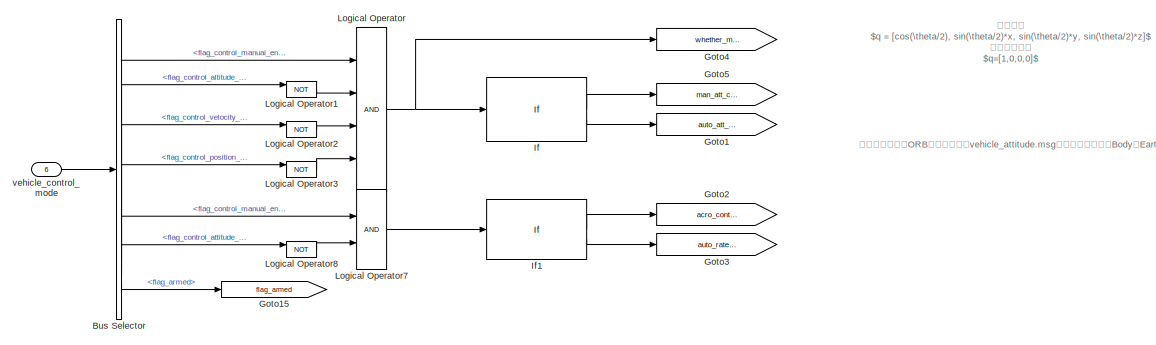
[diagram: root canvas - part 1/3, top left region]
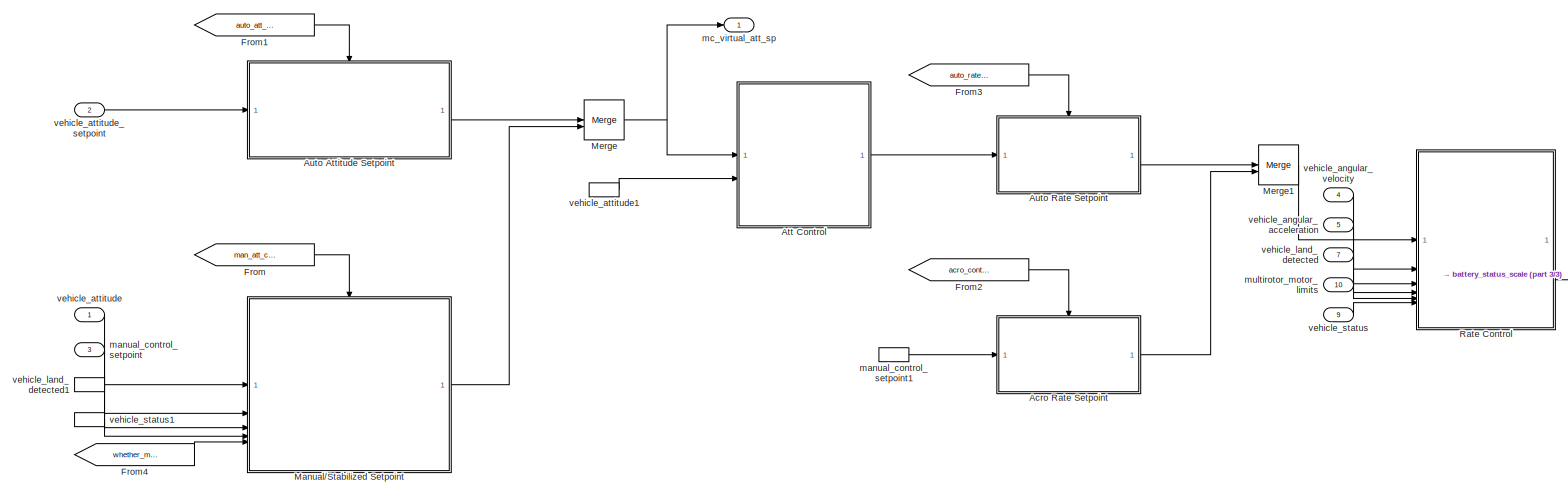
[diagram: root canvas - part 2/3, full width, bottom band]
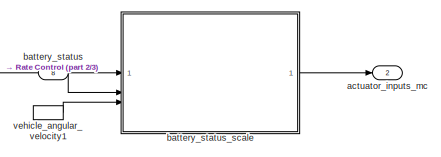
[diagram: root canvas - part 3/3, bottom right region]
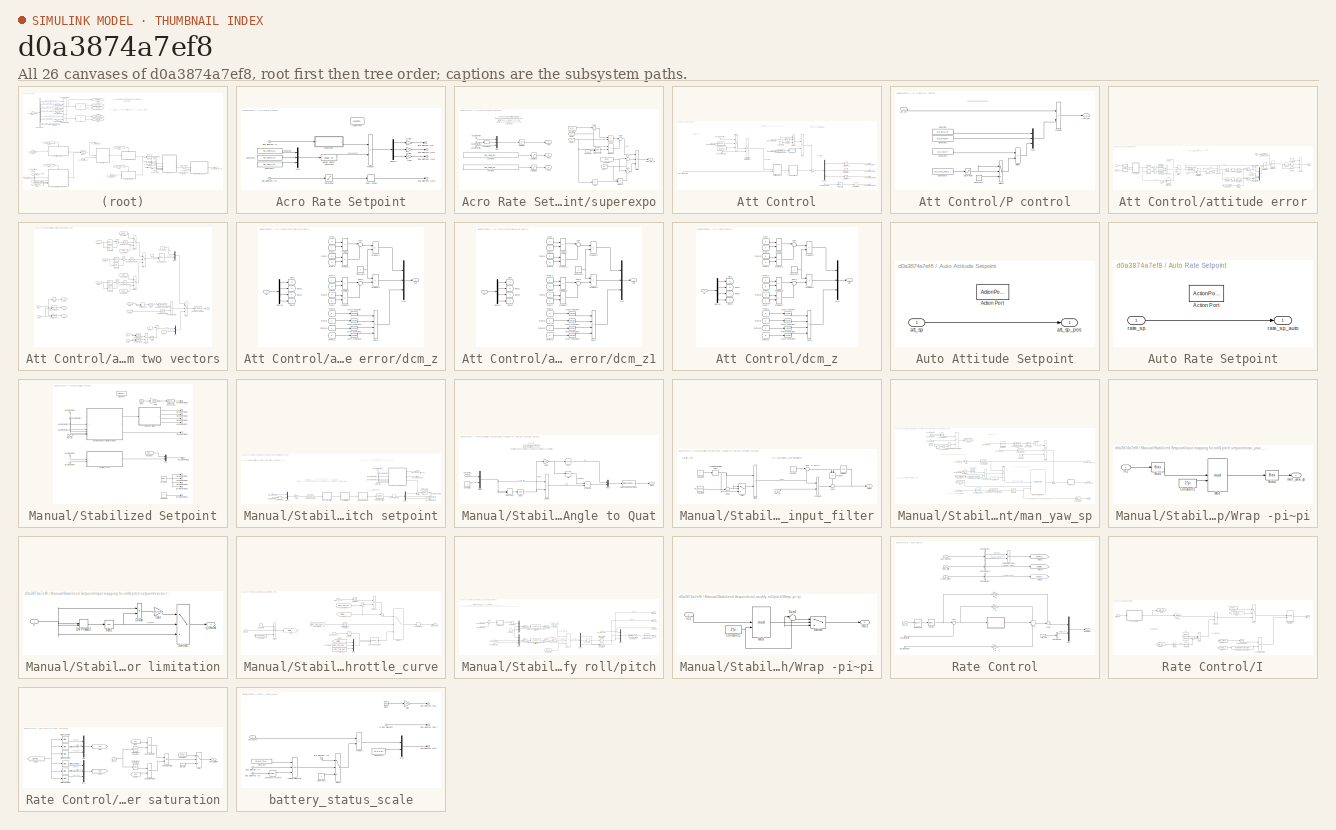
[diagram: thumbnail index - all 26 canvases of the model, root first then tree order]
MODEL slx_d0a3874a7ef8
KIND model
CONFIG AbsTol = auto
CONFIG EnableMultiTasking = off
CONFIG FixedStep = auto
CONFIG MaxStep = auto
CONFIG MinStep = auto
CONFIG RelTol = 1e-3
CONFIG SampleTimeConstraint = Unconstrained
CONFIG SolverName = FixedStepAuto
CONFIG StartTime = 0.0
CONFIG StopTime = 10.0
BLOCK [SubSystem] Acro Rate Setpoint
BLOCK [ActionPort] Acro Rate Setpoint/Action Port
  ActionPortLabel = if(u1)
BLOCK [Reference] Acro Rate Setpoint/Angular Velocity Conversion  REF=aerolibconvert2/Angular Velocity
Conversion
  SourceBlock = aerolibconvert2/Angular Velocity\nConversion
  SourceType = Angular Velocity Conversion
BLOCK [Inport] Acro Rate Setpoint/Bus Element In
BLOCK [Inport] Acro Rate Setpoint/Bus Element In1
BLOCK [Outport] Acro Rate Setpoint/Bus Element Out
BLOCK [Outport] Acro Rate Setpoint/Bus Element Out1
BLOCK [Outport] Acro Rate Setpoint/Bus Element Out2
BLOCK [Outport] Acro Rate Setpoint/Bus Element Out3
BLOCK [Constant] Acro Rate Setpoint/Constant
  Value = MC_ACRO_R_MAX
BLOCK [Constant] Acro Rate Setpoint/Constant1
  Value = MC_ACRO_P_MAX
BLOCK [Constant] Acro Rate Setpoint/Constant2
  Value = MC_ACRO_Y_MAX
BLOCK [Demux] Acro Rate Setpoint/Demux
  Outputs = 3
BLOCK [Gain] Acro Rate Setpoint/Gain
BLOCK [Gain] Acro Rate Setpoint/Gain1
BLOCK [Gain] Acro Rate Setpoint/Gain2
BLOCK [Mux] Acro Rate Setpoint/Mux
  DisplayOption = bar
  Inputs = 3
BLOCK [Product] Acro Rate Setpoint/Product
BLOCK [Saturate] Acro Rate Setpoint/Saturation
  AttributesFormatString = [%<LowerLimit>,%<UpperLimit>]
  LowerLimit = 0.0
  UpperLimit = 1.0
BLOCK [UnaryMinus] Acro Rate Setpoint/Unary Minus
BLOCK [SubSystem] Acro Rate Setpoint/superexpo
BLOCK [Abs] Acro Rate Setpoint/superexpo/Abs
  SaturateOnIntegerOverflow = off
BLOCK [Inport] Acro Rate Setpoint/superexpo/Bus Element In
BLOCK [Inport] Acro Rate Setpoint/superexpo/Bus Element In1
BLOCK [Inport] Acro Rate Setpoint/superexpo/Bus Element In2
BLOCK [Constant] Acro Rate Setpoint/superexpo/Constant
  OutDataTypeStr = single
  Value = [1 1 1]
BLOCK [Constant] Acro Rate Setpoint/superexpo/Constant1
  OutDataTypeStr = single
  Value = [1 1 1]
BLOCK [Constant] Acro Rate Setpoint/superexpo/Constant2
  OutDataTypeStr = single
  Value = 3
BLOCK [Constant] Acro Rate Setpoint/superexpo/Constant3
  Value = [MC_ACRO_EXPO MC_ACRO_EXPO MC_ACRO_EXPO_Y]
BLOCK [Constant] Acro Rate Setpoint/superexpo/Constant4
  Value = [MC_ACRO_SUPEXPO MC_ACRO_SUPEXPO MC_ACRO_SUPEXPOY]
BLOCK [Product] Acro Rate Setpoint/superexpo/Divide
  Inputs = **/
BLOCK [From] Acro Rate Setpoint/superexpo/From
  GotoTag = gc
BLOCK [From] Acro Rate Setpoint/superexpo/From2
  GotoTag = ec
BLOCK [From] Acro Rate Setpoint/superexpo/From3
  GotoTag = x
BLOCK [Goto] Acro Rate Setpoint/superexpo/Goto
  GotoTag = x
BLOCK [Goto] Acro Rate Setpoint/superexpo/Goto1
  GotoTag = gc
BLOCK [Goto] Acro Rate Setpoint/superexpo/Goto2
  GotoTag = ec
BLOCK [Math] Acro Rate Setpoint/superexpo/Math Function
  Operator = pow
BLOCK [Mux] Acro Rate Setpoint/superexpo/Mux
  DisplayOption = bar
  Inputs = 3
BLOCK [Product] Acro Rate Setpoint/superexpo/Product
BLOCK [Product] Acro Rate Setpoint/superexpo/Product1
BLOCK [Product] Acro Rate Setpoint/superexpo/Product2
BLOCK [Saturate] Acro Rate Setpoint/superexpo/Saturation
  AttributesFormatString = [%<LowerLimit>,%<UpperLimit>]
  LowerLimit = -1.0
  UpperLimit = 1.0
BLOCK [Saturate] Acro Rate Setpoint/superexpo/Saturation1
  AttributesFormatString = [%<LowerLimit>,%<UpperLimit>]
  LowerLimit = 0.0
  UpperLimit = 0.99
BLOCK [Saturate] Acro Rate Setpoint/superexpo/Saturation2
  AttributesFormatString = [%<LowerLimit>,%<UpperLimit>]
  LowerLimit = 0.0
  UpperLimit = 1.0
BLOCK [Sum] Acro Rate Setpoint/superexpo/Sum
  Inputs = |+-
BLOCK [Sum] Acro Rate Setpoint/superexpo/Sum1
  Inputs = |+-
BLOCK [Sum] Acro Rate Setpoint/superexpo/Sum2
  Inputs = |++
BLOCK [Sum] Acro Rate Setpoint/superexpo/Sum3
  Inputs = |+-
BLOCK [UnaryMinus] Acro Rate Setpoint/superexpo/Unary Minus
BLOCK [Outport] Acro Rate Setpoint/superexpo/man_rate_sp
BLOCK [SubSystem] Att Control
BLOCK [Product] Att Control/1
BLOCK [Inport] Att Control/Bus Element In
BLOCK [Inport] Att Control/Bus Element In1
  Port = 2
BLOCK [Inport] Att Control/Bus Element In2
  Port = 2
BLOCK [Inport] Att Control/Bus Element In3
  Port = 2
BLOCK [Inport] Att Control/Bus Element In4
  Port = 2
BLOCK [Inport] Att Control/Bus Element In5
BLOCK [Inport] Att Control/Bus Element In6
BLOCK [Outport] Att Control/Bus Element Out
BLOCK [Outport] Att Control/Bus Element Out1
BLOCK [Outport] Att Control/Bus Element Out2
BLOCK [Outport] Att Control/Bus Element Out3
BLOCK [Constant] Att Control/Constant
  OutDataTypeStr = single
  Value = [1 0 0 0]
BLOCK [Constant] Att Control/Constant5
  OutDataTypeStr = single
  Value = 0
BLOCK [Demux] Att Control/Demux
  Outputs = 3
BLOCK [Reference] Att Control/Detect Change  REF=simulink/Logic and Bit
Operations/Detect
Change
  SourceBlock = simulink/Logic and Bit\nOperations/Detect\nChange
  SourceType = Detect Change
BLOCK [RelationalOperator] Att Control/IsFinite
  InputSameDT = off
  Operator = isFinite
  OutDataTypeStr = boolean
  RndMeth = Simplest
BLOCK [SubSystem] Att Control/P control
BLOCK [Constant] Att Control/P control/Constant
  Value = MC_ROLL_P
BLOCK [Constant] Att Control/P control/Constant1
  Value = MC_PITCH_P
BLOCK [Constant] Att Control/P control/Constant2
  Value = MC_YAW_P
BLOCK [Constant] Att Control/P control/Constant3
  OutDataTypeStr = single
  Value = MC_YAW_WEIGHT
BLOCK [Constant] Att Control/P control/Constant4
  OutDataTypeStr = single
BLOCK [Product] Att Control/P control/Divide
  Inputs = */
BLOCK [Mux] Att Control/P control/Mux
  DisplayOption = bar
  Inputs = 3
BLOCK [Product] Att Control/P control/Product
BLOCK [Saturate] Att Control/P control/Saturation
  AttributesFormatString = [%<LowerLimit>,%<UpperLimit>]
  LowerLimit = 0.0
  UpperLimit = 1.0
BLOCK [Switch] Att Control/P control/Switch
  AttributesFormatString = %<Criteria>\n%<Threshold>
  Criteria = u2 > Threshold
  InputSameDT = off
  SaturateOnIntegerOverflow = off
  Threshold = 1e-4
BLOCK [Inport] Att Control/P control/att_err
BLOCK [Outport] Att Control/P control/rate_sp
BLOCK [Reference] Att Control/Quaternion Inverse  REF=aerolibutil/Quaternion
Inverse
  SourceBlock = aerolibutil/Quaternion\nInverse
  SourceType = Quaternion Inverse
BLOCK [Reference] Att Control/Quaternion Multiplication  REF=aerolibutil/Quaternion
Multiplication
  SourceBlock = aerolibutil/Quaternion\nMultiplication
  SourceType = Quaternion Multiplication
BLOCK [Saturate] Att Control/Saturation1
  AttributesFormatString = [%<LowerLimit>,%<UpperLimit>]
  LowerLimit = -deg2rad(MC_ROLLRATE_MAX)
  UpperLimit = deg2rad(MC_ROLLRATE_MAX)
BLOCK [Saturate] Att Control/Saturation2
  AttributesFormatString = [%<LowerLimit>,%<UpperLimit>]
  LowerLimit = -deg2rad(MC_PITCHRATE_MAX)
  UpperLimit = deg2rad(MC_PITCHRATE_MAX)
BLOCK [Saturate] Att Control/Saturation3
  AttributesFormatString = [%<LowerLimit>,%<UpperLimit>]
  LowerLimit = -deg2rad(MC_YAWRATE_MAX)
  UpperLimit = deg2rad(MC_YAWRATE_MAX)
BLOCK [Selector] Att Control/Selector1
  IndexOptions = Index vector (dialog)
  Indices = 3
  InputPortWidth = 3
  OutputSizes = 1
BLOCK [Sum] Att Control/Sum
  Inputs = ++|
BLOCK [Switch] Att Control/Switch1
  Criteria = u2 ~= 0
  InputSameDT = off
  SaturateOnIntegerOverflow = off
BLOCK [Switch] Att Control/Switch2
  Criteria = u2 ~= 0
  InputSameDT = off
  SaturateOnIntegerOverflow = off
BLOCK [UnaryMinus] Att Control/Unary Minus
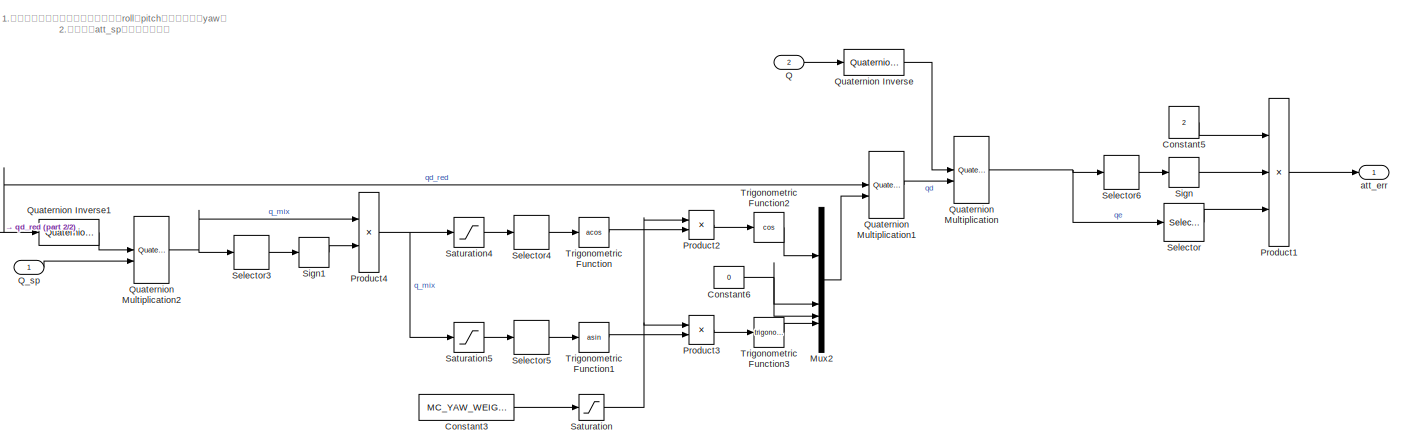
[diagram: Att Control/attitude error - part 1/2, right side, full height]
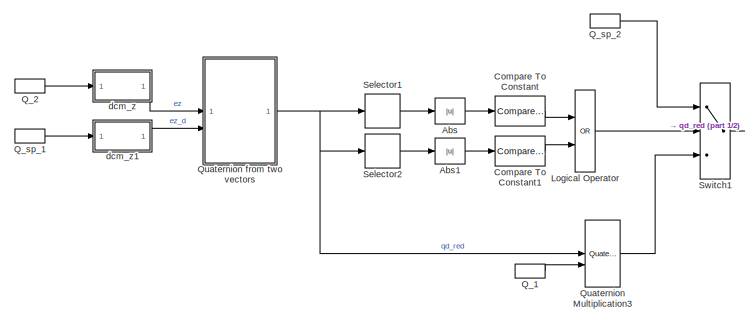
[diagram: Att Control/attitude error - part 2/2, middle left region]
BLOCK [SubSystem] Att Control/attitude error
BLOCK [Abs] Att Control/attitude error/Abs
  SaturateOnIntegerOverflow = off
BLOCK [Abs] Att Control/attitude error/Abs1
  SaturateOnIntegerOverflow = off
BLOCK [Reference] Att Control/attitude error/Compare To Constant  REF=simulink/Logic and Bit
Operations/Compare
To Constant
  SourceBlock = simulink/Logic and Bit\nOperations/Compare\nTo Constant
  SourceType = Compare To Constant
BLOCK [Reference] Att Control/attitude error/Compare To Constant1  REF=simulink/Logic and Bit
Operations/Compare
To Constant
  SourceBlock = simulink/Logic and Bit\nOperations/Compare\nTo Constant
  SourceType = Compare To Constant
BLOCK [Constant] Att Control/attitude error/Constant3
  OutDataTypeStr = single
  Value = MC_YAW_WEIGHT
BLOCK [Constant] Att Control/attitude error/Constant5
  OutDataTypeStr = single
  Value = 2
BLOCK [Constant] Att Control/attitude error/Constant6
  OutDataTypeStr = single
  Value = 0
BLOCK [Logic] Att Control/attitude error/Logical Operator
  AllPortsSameDT = off
  Operator = OR
  OutDataTypeStr = boolean
BLOCK [Mux] Att Control/attitude error/Mux2
  DisplayOption = bar
BLOCK [Product] Att Control/attitude error/Product1
  Inputs = 3
BLOCK [Product] Att Control/attitude error/Product2
BLOCK [Product] Att Control/attitude error/Product3
BLOCK [Product] Att Control/attitude error/Product4
BLOCK [Inport] Att Control/attitude error/Q
  Port = 2
BLOCK [InportShadow] Att Control/attitude error/Q_1
  Port = 2
BLOCK [InportShadow] Att Control/attitude error/Q_2
  Port = 2
BLOCK [Inport] Att Control/attitude error/Q_sp
BLOCK [InportShadow] Att Control/attitude error/Q_sp_1
BLOCK [InportShadow] Att Control/attitude error/Q_sp_2
BLOCK [Reference] Att Control/attitude error/Quaternion Inverse  REF=aerolibutil/Quaternion
Inverse
  SourceBlock = aerolibutil/Quaternion\nInverse
  SourceType = Quaternion Inverse
BLOCK [Reference] Att Control/attitude error/Quaternion Inverse1  REF=aerolibutil/Quaternion
Inverse
  SourceBlock = aerolibutil/Quaternion\nInverse
  SourceType = Quaternion Inverse
BLOCK [Reference] Att Control/attitude error/Quaternion Multiplication  REF=aerolibutil/Quaternion
Multiplication
  SourceBlock = aerolibutil/Quaternion\nMultiplication
  SourceType = Quaternion Multiplication
BLOCK [Reference] Att Control/attitude error/Quaternion Multiplication1  REF=aerolibutil/Quaternion
Multiplication
  SourceBlock = aerolibutil/Quaternion\nMultiplication
  SourceType = Quaternion Multiplication
BLOCK [Reference] Att Control/attitude error/Quaternion Multiplication2  REF=aerolibutil/Quaternion
Multiplication
  SourceBlock = aerolibutil/Quaternion\nMultiplication
  SourceType = Quaternion Multiplication
BLOCK [Reference] Att Control/attitude error/Quaternion Multiplication3  REF=aerolibutil/Quaternion
Multiplication
  SourceBlock = aerolibutil/Quaternion\nMultiplication
  SourceType = Quaternion Multiplication
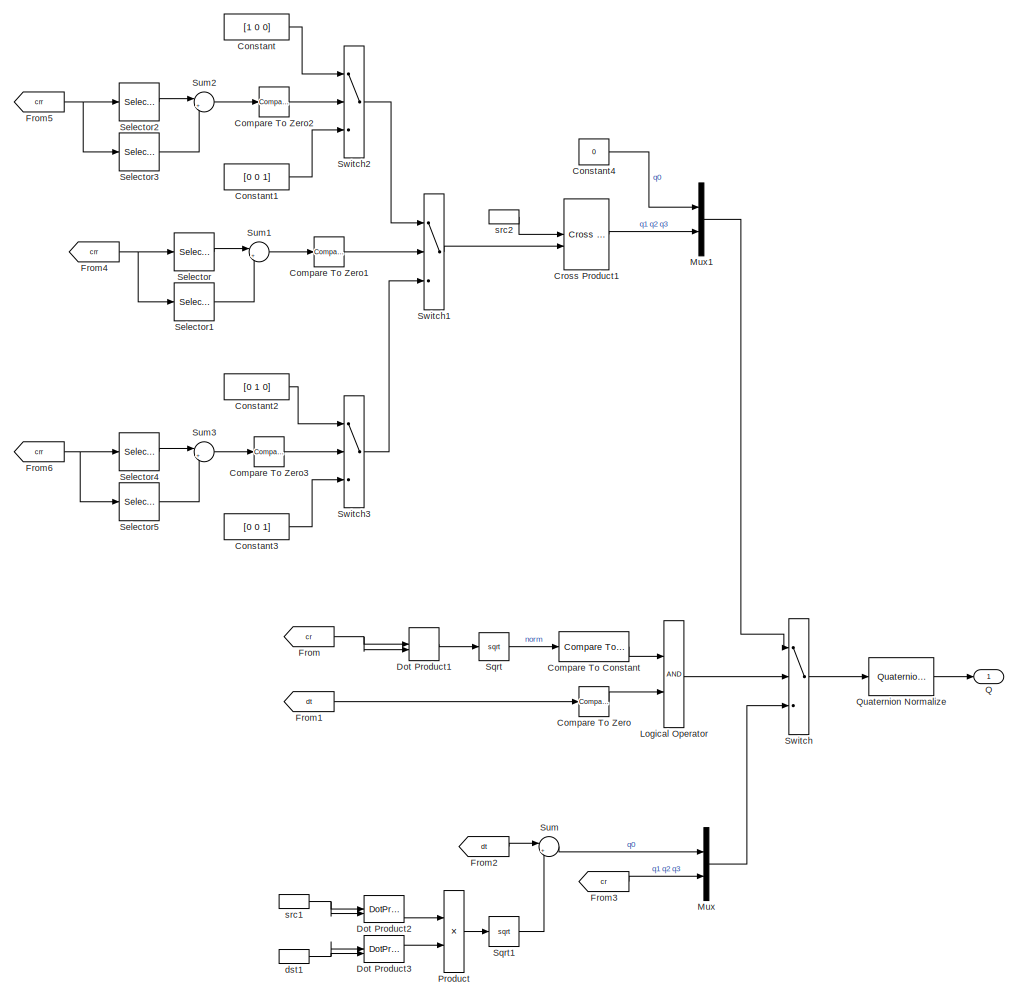
[diagram: Att Control/attitude error/Quaternion from two vectors - part 1/2, center side, full height]
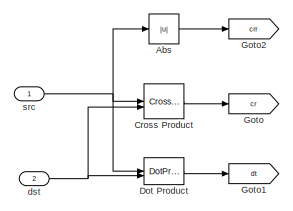
[diagram: Att Control/attitude error/Quaternion from two vectors - part 2/2, bottom left region]
BLOCK [SubSystem] Att Control/attitude error/Quaternion from two vectors
BLOCK [Abs] Att Control/attitude error/Quaternion from two vectors/Abs
  SaturateOnIntegerOverflow = off
BLOCK [Reference] Att Control/attitude error/Quaternion from two vectors/Compare To Constant  REF=simulink/Logic and Bit
Operations/Compare
To Constant
  SourceBlock = simulink/Logic and Bit\nOperations/Compare\nTo Constant
  SourceType = Compare To Constant
BLOCK [Reference] Att Control/attitude error/Quaternion from two vectors/Compare To Zero  REF=simulink/Logic and Bit
Operations/Compare
To Zero
  SourceBlock = simulink/Logic and Bit\nOperations/Compare\nTo Zero
  SourceType = Compare To Zero
BLOCK [Reference] Att Control/attitude error/Quaternion from two vectors/Compare To Zero1  REF=simulink/Logic and Bit
Operations/Compare
To Zero
  SourceBlock = simulink/Logic and Bit\nOperations/Compare\nTo Zero
  SourceType = Compare To Zero
BLOCK [Reference] Att Control/attitude error/Quaternion from two vectors/Compare To Zero2  REF=simulink/Logic and Bit
Operations/Compare
To Zero
  SourceBlock = simulink/Logic and Bit\nOperations/Compare\nTo Zero
  SourceType = Compare To Zero
BLOCK [Reference] Att Control/attitude error/Quaternion from two vectors/Compare To Zero3  REF=simulink/Logic and Bit
Operations/Compare
To Zero
  SourceBlock = simulink/Logic and Bit\nOperations/Compare\nTo Zero
  SourceType = Compare To Zero
BLOCK [Constant] Att Control/attitude error/Quaternion from two vectors/Constant
  OutDataTypeStr = single
  Value = [1 0 0]
BLOCK [Constant] Att Control/attitude error/Quaternion from two vectors/Constant1
  OutDataTypeStr = single
  Value = [0 0 1]
BLOCK [Constant] Att Control/attitude error/Quaternion from two vectors/Constant2
  OutDataTypeStr = single
  Value = [0 1 0]
BLOCK [Constant] Att Control/attitude error/Quaternion from two vectors/Constant3
  OutDataTypeStr = single
  Value = [0 0 1]
BLOCK [Constant] Att Control/attitude error/Quaternion from two vectors/Constant4
  OutDataTypeStr = single
  Value = 0
BLOCK [Reference] Att Control/attitude error/Quaternion from two vectors/Cross Product  REF=vrlib/Utilities/Cross Product
  SourceBlock = vrlib/Utilities/Cross Product
  SourceType = Cross Product
BLOCK [Reference] Att Control/attitude error/Quaternion from two vectors/Cross Product1  REF=vrlib/Utilities/Cross Product
  SourceBlock = vrlib/Utilities/Cross Product
  SourceType = Cross Product
BLOCK [DotProduct] Att Control/attitude error/Quaternion from two vectors/Dot Product
  OutDataTypeStr = Inherit: Inherit via internal rule
BLOCK [DotProduct] Att Control/attitude error/Quaternion from two vectors/Dot Product1
  OutDataTypeStr = Inherit: Inherit via internal rule
BLOCK [DotProduct] Att Control/attitude error/Quaternion from two vectors/Dot Product2
  OutDataTypeStr = Inherit: Inherit via internal rule
BLOCK [DotProduct] Att Control/attitude error/Quaternion from two vectors/Dot Product3
  OutDataTypeStr = Inherit: Inherit via internal rule
BLOCK [From] Att Control/attitude error/Quaternion from two vectors/From
  GotoTag = cr
BLOCK [From] Att Control/attitude error/Quaternion from two vectors/From1
  GotoTag = dt
BLOCK [From] Att Control/attitude error/Quaternion from two vectors/From2
  GotoTag = dt
BLOCK [From] Att Control/attitude error/Quaternion from two vectors/From3
  GotoTag = cr
BLOCK [From] Att Control/attitude error/Quaternion from two vectors/From4
  GotoTag = crr
BLOCK [From] Att Control/attitude error/Quaternion from two vectors/From5
  GotoTag = crr
BLOCK [From] Att Control/attitude error/Quaternion from two vectors/From6
  GotoTag = crr
BLOCK [Goto] Att Control/attitude error/Quaternion from two vectors/Goto
  GotoTag = cr
BLOCK [Goto] Att Control/attitude error/Quaternion from two vectors/Goto1
  GotoTag = dt
BLOCK [Goto] Att Control/attitude error/Quaternion from two vectors/Goto2
  GotoTag = crr
BLOCK [Logic] Att Control/attitude error/Quaternion from two vectors/Logical Operator
  AllPortsSameDT = off
  OutDataTypeStr = boolean
BLOCK [Mux] Att Control/attitude error/Quaternion from two vectors/Mux
  DisplayOption = bar
  Inputs = 2
BLOCK [Mux] Att Control/attitude error/Quaternion from two vectors/Mux1
  DisplayOption = bar
  Inputs = 2
BLOCK [Product] Att Control/attitude error/Quaternion from two vectors/Product
BLOCK [Outport] Att Control/attitude error/Quaternion from two vectors/Q
BLOCK [Reference] Att Control/attitude error/Quaternion from two vectors/Quaternion Normalize  REF=sharedutil/Quaternion
Normalize
  SourceBlock = sharedutil/Quaternion\nNormalize
  SourceType = Quaternion Normalize
BLOCK [Selector] Att Control/attitude error/Quaternion from two vectors/Selector
  IndexOptions = Index vector (dialog)
  Indices = 1
  InputPortWidth = 3
  OutputSizes = 1
BLOCK [Selector] Att Control/attitude error/Quaternion from two vectors/Selector1
  IndexOptions = Index vector (dialog)
  Indices = 2
  InputPortWidth = 3
  OutputSizes = 1
BLOCK [Selector] Att Control/attitude error/Quaternion from two vectors/Selector2
  IndexOptions = Index vector (dialog)
  Indices = 1
  InputPortWidth = 3
  OutputSizes = 1
BLOCK [Selector] Att Control/attitude error/Quaternion from two vectors/Selector3
  IndexOptions = Index vector (dialog)
  Indices = 3
  InputPortWidth = 3
  OutputSizes = 1
BLOCK [Selector] Att Control/attitude error/Quaternion from two vectors/Selector4
  IndexOptions = Index vector (dialog)
  Indices = 2
  InputPortWidth = 3
  OutputSizes = 1
BLOCK [Selector] Att Control/attitude error/Quaternion from two vectors/Selector5
  IndexOptions = Index vector (dialog)
  Indices = 3
  InputPortWidth = 3
  OutputSizes = 1
BLOCK [Sqrt] Att Control/attitude error/Quaternion from two vectors/Sqrt
BLOCK [Sqrt] Att Control/attitude error/Quaternion from two vectors/Sqrt1
BLOCK [Sum] Att Control/attitude error/Quaternion from two vectors/Sum
  Inputs = |++
BLOCK [Sum] Att Control/attitude error/Quaternion from two vectors/Sum1
  Inputs = |+-
BLOCK [Sum] Att Control/attitude error/Quaternion from two vectors/Sum2
  Inputs = |+-
BLOCK [Sum] Att Control/attitude error/Quaternion from two vectors/Sum3
  Inputs = |+-
BLOCK [Switch] Att Control/attitude error/Quaternion from two vectors/Switch
  Criteria = u2 ~= 0
  InputSameDT = off
  SaturateOnIntegerOverflow = off
BLOCK [Switch] Att Control/attitude error/Quaternion from two vectors/Switch1
  Criteria = u2 ~= 0
  InputSameDT = off
  SaturateOnIntegerOverflow = off
BLOCK [Switch] Att Control/attitude error/Quaternion from two vectors/Switch2
  Criteria = u2 ~= 0
  InputSameDT = off
  SaturateOnIntegerOverflow = off
BLOCK [Switch] Att Control/attitude error/Quaternion from two vectors/Switch3
  Criteria = u2 ~= 0
  InputSameDT = off
  SaturateOnIntegerOverflow = off
BLOCK [Inport] Att Control/attitude error/Quaternion from two vectors/dst
  Port = 2
BLOCK [InportShadow] Att Control/attitude error/Quaternion from two vectors/dst1
  Port = 2
BLOCK [Inport] Att Control/attitude error/Quaternion from two vectors/src
BLOCK [InportShadow] Att Control/attitude error/Quaternion from two vectors/src1
BLOCK [InportShadow] Att Control/attitude error/Quaternion from two vectors/src2
BLOCK [Saturate] Att Control/attitude error/Saturation
  AttributesFormatString = [%<LowerLimit>,%<UpperLimit>]
  LowerLimit = 0.0
  UpperLimit = 1.0
BLOCK [Saturate] Att Control/attitude error/Saturation4
  LowerLimit = -1.0
  UpperLimit = 1.0
BLOCK [Saturate] Att Control/attitude error/Saturation5
  LowerLimit = -1.0
  UpperLimit = 1.0
BLOCK [Selector] Att Control/attitude error/Selector
  IndexOptions = Index vector (dialog)
  Indices = [2 3 4]
  InputPortWidth = 4
  OutputSizes = 1
BLOCK [Selector] Att Control/attitude error/Selector1
  IndexOptions = Index vector (dialog)
  Indices = 2
  InputPortWidth = 4
  OutputSizes = 1
BLOCK [Selector] Att Control/attitude error/Selector2
  IndexOptions = Index vector (dialog)
  Indices = 3
  InputPortWidth = 4
  OutputSizes = 1
BLOCK [Selector] Att Control/attitude error/Selector3
  IndexOptions = Index vector (dialog)
  Indices = 1
  InputPortWidth = 4
  OutputSizes = 1
BLOCK [Selector] Att Control/attitude error/Selector4
  IndexOptions = Index vector (dialog)
  Indices = 1
  InputPortWidth = 4
  OutputSizes = 1
BLOCK [Selector] Att Control/attitude error/Selector5
  IndexOptions = Index vector (dialog)
  Indices = 4
  InputPortWidth = 4
  OutputSizes = 1
BLOCK [Selector] Att Control/attitude error/Selector6
  IndexOptions = Index vector (dialog)
  Indices = 1
  InputPortWidth = 4
  OutputSizes = 1
BLOCK [Signum] Att Control/attitude error/Sign
BLOCK [Signum] Att Control/attitude error/Sign1
BLOCK [Switch] Att Control/attitude error/Switch1
  Criteria = u2 ~= 0
  InputSameDT = off
  SaturateOnIntegerOverflow = off
BLOCK [Trigonometry] Att Control/attitude error/Trigonometric Function
  Operator = acos
BLOCK [Trigonometry] Att Control/attitude error/Trigonometric Function1
  Operator = asin
BLOCK [Trigonometry] Att Control/attitude error/Trigonometric Function2
  Operator = cos
BLOCK [Trigonometry] Att Control/attitude error/Trigonometric Function3
BLOCK [Outport] Att Control/attitude error/att_err
BLOCK [SubSystem] Att Control/attitude error/dcm_z
BLOCK [Constant] Att Control/attitude error/dcm_z/Constant1
  OutDataTypeStr = single
  Value = 2
BLOCK [Demux] Att Control/attitude error/dcm_z/Demux
BLOCK [From] Att Control/attitude error/dcm_z/From
  GotoTag = a
BLOCK [From] Att Control/attitude error/dcm_z/From1
  GotoTag = c
BLOCK [From] Att Control/attitude error/dcm_z/From10
  GotoTag = c
BLOCK [From] Att Control/attitude error/dcm_z/From11
  GotoTag = d
BLOCK [From] Att Control/attitude error/dcm_z/From2
  GotoTag = b
BLOCK [From] Att Control/attitude error/dcm_z/From3
  GotoTag = d
BLOCK [From] Att Control/attitude error/dcm_z/From4
  GotoTag = c
BLOCK [From] Att Control/attitude error/dcm_z/From5
  GotoTag = d
BLOCK [From] Att Control/attitude error/dcm_z/From6
  GotoTag = a
BLOCK [From] Att Control/attitude error/dcm_z/From7
  GotoTag = b
BLOCK [From] Att Control/attitude error/dcm_z/From8
  GotoTag = a
BLOCK [From] Att Control/attitude error/dcm_z/From9
  GotoTag = b
BLOCK [Goto] Att Control/attitude error/dcm_z/Goto
  GotoTag = a
BLOCK [Goto] Att Control/attitude error/dcm_z/Goto1
  GotoTag = b
BLOCK [Goto] Att Control/attitude error/dcm_z/Goto2
  GotoTag = c
BLOCK [Goto] Att Control/attitude error/dcm_z/Goto3
  GotoTag = d
BLOCK [Math] Att Control/attitude error/dcm_z/Math Function
  Operator = square
BLOCK [Math] Att Control/attitude error/dcm_z/Math Function1
  Operator = square
BLOCK [Math] Att Control/attitude error/dcm_z/Math Function2
  Operator = square
BLOCK [Math] Att Control/attitude error/dcm_z/Math Function3
  Operator = square
BLOCK [Mux] Att Control/attitude error/dcm_z/Mux
  DisplayOption = bar
  Inputs = 3
BLOCK [Product] Att Control/attitude error/dcm_z/Product
BLOCK [Product] Att Control/attitude error/dcm_z/Product1
BLOCK [Product] Att Control/attitude error/dcm_z/Product2
BLOCK [Product] Att Control/attitude error/dcm_z/Product3
BLOCK [Product] Att Control/attitude error/dcm_z/Product4
BLOCK [Product] Att Control/attitude error/dcm_z/Product5
BLOCK [Inport] Att Control/attitude error/dcm_z/Q
BLOCK [Sum] Att Control/attitude error/dcm_z/Sum
  Inputs = |++
BLOCK [Sum] Att Control/attitude error/dcm_z/Sum1
  Inputs = |+-
BLOCK [Sum] Att Control/attitude error/dcm_z/Sum2
  IconShape = rectangular
  Inputs = +--+
BLOCK [Outport] Att Control/attitude error/dcm_z/out
BLOCK [SubSystem] Att Control/attitude error/dcm_z1
BLOCK [Constant] Att Control/attitude error/dcm_z1/Constant1
  OutDataTypeStr = single
  Value = 2
BLOCK [Demux] Att Control/attitude error/dcm_z1/Demux
BLOCK [From] Att Control/attitude error/dcm_z1/From
  GotoTag = a
BLOCK [From] Att Control/attitude error/dcm_z1/From1
  GotoTag = c
BLOCK [From] Att Control/attitude error/dcm_z1/From10
  GotoTag = c
BLOCK [From] Att Control/attitude error/dcm_z1/From11
  GotoTag = d
BLOCK [From] Att Control/attitude error/dcm_z1/From2
  GotoTag = b
BLOCK [From] Att Control/attitude error/dcm_z1/From3
  GotoTag = d
BLOCK [From] Att Control/attitude error/dcm_z1/From4
  GotoTag = c
BLOCK [From] Att Control/attitude error/dcm_z1/From5
  GotoTag = d
BLOCK [From] Att Control/attitude error/dcm_z1/From6
  GotoTag = a
BLOCK [From] Att Control/attitude error/dcm_z1/From7
  GotoTag = b
BLOCK [From] Att Control/attitude error/dcm_z1/From8
  GotoTag = a
BLOCK [From] Att Control/attitude error/dcm_z1/From9
  GotoTag = b
BLOCK [Goto] Att Control/attitude error/dcm_z1/Goto
  GotoTag = a
BLOCK [Goto] Att Control/attitude error/dcm_z1/Goto1
  GotoTag = b
BLOCK [Goto] Att Control/attitude error/dcm_z1/Goto2
  GotoTag = c
BLOCK [Goto] Att Control/attitude error/dcm_z1/Goto3
  GotoTag = d
BLOCK [Math] Att Control/attitude error/dcm_z1/Math Function
  Operator = square
BLOCK [Math] Att Control/attitude error/dcm_z1/Math Function1
  Operator = square
BLOCK [Math] Att Control/attitude error/dcm_z1/Math Function2
  Operator = square
BLOCK [Math] Att Control/attitude error/dcm_z1/Math Function3
  Operator = square
BLOCK [Mux] Att Control/attitude error/dcm_z1/Mux
  DisplayOption = bar
  Inputs = 3
BLOCK [Product] Att Control/attitude error/dcm_z1/Product
BLOCK [Product] Att Control/attitude error/dcm_z1/Product1
BLOCK [Product] Att Control/attitude error/dcm_z1/Product2
BLOCK [Product] Att Control/attitude error/dcm_z1/Product3
BLOCK [Product] Att Control/attitude error/dcm_z1/Product4
BLOCK [Product] Att Control/attitude error/dcm_z1/Product5
BLOCK [Inport] Att Control/attitude error/dcm_z1/Q
BLOCK [Sum] Att Control/attitude error/dcm_z1/Sum
  Inputs = |++
BLOCK [Sum] Att Control/attitude error/dcm_z1/Sum1
  Inputs = |+-
BLOCK [Sum] Att Control/attitude error/dcm_z1/Sum2
  IconShape = rectangular
  Inputs = +--+
BLOCK [Outport] Att Control/attitude error/dcm_z1/out
BLOCK [SubSystem] Att Control/dcm_z
BLOCK [Constant] Att Control/dcm_z/Constant1
  OutDataTypeStr = single
  Value = 2
BLOCK [Demux] Att Control/dcm_z/Demux
BLOCK [From] Att Control/dcm_z/From
  GotoTag = a
BLOCK [From] Att Control/dcm_z/From1
  GotoTag = c
BLOCK [From] Att Control/dcm_z/From10
  GotoTag = c
BLOCK [From] Att Control/dcm_z/From11
  GotoTag = d
BLOCK [From] Att Control/dcm_z/From2
  GotoTag = b
BLOCK [From] Att Control/dcm_z/From3
  GotoTag = d
BLOCK [From] Att Control/dcm_z/From4
  GotoTag = c
BLOCK [From] Att Control/dcm_z/From5
  GotoTag = d
BLOCK [From] Att Control/dcm_z/From6
  GotoTag = a
BLOCK [From] Att Control/dcm_z/From7
  GotoTag = b
BLOCK [From] Att Control/dcm_z/From8
  GotoTag = a
BLOCK [From] Att Control/dcm_z/From9
  GotoTag = b
BLOCK [Goto] Att Control/dcm_z/Goto
  GotoTag = a
BLOCK [Goto] Att Control/dcm_z/Goto1
  GotoTag = b
BLOCK [Goto] Att Control/dcm_z/Goto2
  GotoTag = c
BLOCK [Goto] Att Control/dcm_z/Goto3
  GotoTag = d
BLOCK [Math] Att Control/dcm_z/Math Function
  Operator = square
BLOCK [Math] Att Control/dcm_z/Math Function1
  Operator = square
BLOCK [Math] Att Control/dcm_z/Math Function2
  Operator = square
BLOCK [Math] Att Control/dcm_z/Math Function3
  Operator = square
BLOCK [Mux] Att Control/dcm_z/Mux
  DisplayOption = bar
  Inputs = 3
BLOCK [Product] Att Control/dcm_z/Product
BLOCK [Product] Att Control/dcm_z/Product1
BLOCK [Product] Att Control/dcm_z/Product2
BLOCK [Product] Att Control/dcm_z/Product3
BLOCK [Product] Att Control/dcm_z/Product4
BLOCK [Product] Att Control/dcm_z/Product5
BLOCK [Inport] Att Control/dcm_z/Q
BLOCK [Sum] Att Control/dcm_z/Sum
  Inputs = |++
BLOCK [Sum] Att Control/dcm_z/Sum1
  Inputs = |+-
BLOCK [Sum] Att Control/dcm_z/Sum2
  IconShape = rectangular
  Inputs = +--+
BLOCK [Outport] Att Control/dcm_z/out
BLOCK [SubSystem] Auto Attitude Setpoint
BLOCK [ActionPort] Auto Attitude Setpoint/Action Port
  ActionPortLabel = else
BLOCK [Inport] Auto Attitude Setpoint/att_sp
BLOCK [Outport] Auto Attitude Setpoint/att_sp_pos
BLOCK [SubSystem] Auto Rate Setpoint
BLOCK [ActionPort] Auto Rate Setpoint/Action Port
  ActionPortLabel = else
BLOCK [Inport] Auto Rate Setpoint/rate_sp
BLOCK [Outport] Auto Rate Setpoint/rate_sp_auto
BLOCK [BusSelector] Bus Selector
  OutputSignals = flag_control_manual_enabled,flag_control_altitude_enabled,flag_control_velocity_enabled,flag_control_position_enabled,flag_control_manual_enabled,flag_control_attitude_enabled,flag_armed
BLOCK [From] From
  GotoTag = man_att_control
BLOCK [From] From1
  GotoTag = auto_att_control
BLOCK [From] From2
  GotoTag = acro_control
BLOCK [From] From3
  GotoTag = auto_rate_control
BLOCK [From] From4
  GotoTag = whether_manual
BLOCK [Goto] Goto1
  GotoTag = auto_att_control
BLOCK [Goto] Goto15
  GotoTag = flag_armed
  TagVisibility = global
BLOCK [Goto] Goto2
  GotoTag = acro_control
BLOCK [Goto] Goto3
  GotoTag = auto_rate_control
BLOCK [Goto] Goto4
  GotoTag = whether_manual
BLOCK [Goto] Goto5
  GotoTag = man_att_control
BLOCK [If] If
  IfExpression = u1
BLOCK [If] If1
  IfExpression = u1
BLOCK [Logic] Logical Operator
  AllPortsSameDT = off
  Inputs = 4
  OutDataTypeStr = boolean
BLOCK [Logic] Logical Operator1
  AllPortsSameDT = off
  Inputs = 4
  Operator = NOT
  OutDataTypeStr = boolean
BLOCK [Logic] Logical Operator2
  AllPortsSameDT = off
  Inputs = 4
  Operator = NOT
  OutDataTypeStr = boolean
BLOCK [Logic] Logical Operator3
  AllPortsSameDT = off
  Inputs = 4
  Operator = NOT
  OutDataTypeStr = boolean
BLOCK [Logic] Logical Operator7
  AllPortsSameDT = off
  OutDataTypeStr = boolean
BLOCK [Logic] Logical Operator8
  AllPortsSameDT = off
  Inputs = 4
  Operator = NOT
  OutDataTypeStr = boolean
BLOCK [SubSystem] Manual//Stabilized Setpoint
BLOCK [ActionPort] Manual//Stabilized Setpoint/Action Port
  ActionPortLabel = if(u1)
BLOCK [Inport] Manual//Stabilized Setpoint/Bus Element In1
  Port = 4
BLOCK [Inport] Manual//Stabilized Setpoint/Bus Element In2
  Port = 3
BLOCK [Inport] Manual//Stabilized Setpoint/Bus Element In4
  Port = 2
BLOCK [Inport] Manual//Stabilized Setpoint/Bus Element In5
  Port = 3
BLOCK [Inport] Manual//Stabilized Setpoint/Bus Element In6
  Port = 2
BLOCK [Inport] Manual//Stabilized Setpoint/Bus Element In7
BLOCK [Outport] Manual//Stabilized Setpoint/Bus Element Out
BLOCK [Outport] Manual//Stabilized Setpoint/Bus Element Out1
BLOCK [Outport] Manual//Stabilized Setpoint/Bus Element Out10
BLOCK [Outport] Manual//Stabilized Setpoint/Bus Element Out11
BLOCK [Outport] Manual//Stabilized Setpoint/Bus Element Out2
BLOCK [Outport] Manual//Stabilized Setpoint/Bus Element Out3
BLOCK [Outport] Manual//Stabilized Setpoint/Bus Element Out4
BLOCK [Outport] Manual//Stabilized Setpoint/Bus Element Out5
BLOCK [Outport] Manual//Stabilized Setpoint/Bus Element Out6
BLOCK [Outport] Manual//Stabilized Setpoint/Bus Element Out7
BLOCK [Outport] Manual//Stabilized Setpoint/Bus Element Out8
BLOCK [Outport] Manual//Stabilized Setpoint/Bus Element Out9
BLOCK [Clock] Manual//Stabilized Setpoint/Clock
BLOCK [Constant] Manual//Stabilized Setpoint/Constant
  OutDataTypeStr = single
  Value = [0 0]
BLOCK [Constant] Manual//Stabilized Setpoint/Constant1
  Value = false
BLOCK [Constant] Manual//Stabilized Setpoint/Constant2
  OutDataTypeStr = uint8
  Value = 0
BLOCK [DataTypeConversion] Manual//Stabilized Setpoint/Data Type Conversion
  RndMeth = Floor
  SaturateOnIntegerOverflow = off
BLOCK [Gain] Manual//Stabilized Setpoint/Gain
  AttributesFormatString = %<Gain>
  Gain = 1e+6
  OutDataTypeStr = uint64
BLOCK [Mux] Manual//Stabilized Setpoint/Mux
  DisplayOption = bar
  Inputs = 2
BLOCK [SubSystem] Manual//Stabilized Setpoint/input mapping for roll& pitch setpoint
BLOCK [Reference] Manual//Stabilized Setpoint/input mapping for roll& pitch setpoint/Angle Conversion  REF=aerolibconvert2/Angle Conversion
  SourceBlock = aerolibconvert2/Angle Conversion
  SourceType = Angle Conversion
BLOCK [SubSystem] Manual//Stabilized Setpoint/input mapping for roll& pitch setpoint/AxisAngle to Quat
BLOCK [Inport] Manual//Stabilized Setpoint/input mapping for roll& pitch setpoint/AxisAngle to Quat/AxisAngle1
BLOCK [Constant] Manual//Stabilized Setpoint/input mapping for roll& pitch setpoint/AxisAngle to Quat/Constant1
  OutDataTypeStr = single
  Value = 0
BLOCK [Trigonometry] Manual//Stabilized Setpoint/input mapping for roll& pitch setpoint/AxisAngle to Quat/Cos
  Operator = cos
BLOCK [DataTypeConversion] Manual//Stabilized Setpoint/input mapping for roll& pitch setpoint/AxisAngle to Quat/Data Type Conversion1
  RndMeth = Floor
  SaturateOnIntegerOverflow = off
BLOCK [Product] Manual//Stabilized Setpoint/input mapping for roll& pitch setpoint/AxisAngle to Quat/Divide1
  Inputs = */
BLOCK [DotProduct] Manual//Stabilized Setpoint/input mapping for roll& pitch setpoint/AxisAngle to Quat/Dot Product
  OutDataTypeStr = Inherit: Inherit via internal rule
BLOCK [Gain] Manual//Stabilized Setpoint/input mapping for roll& pitch setpoint/AxisAngle to Quat/Gain1
  Gain = 0.5
BLOCK [Mux] Manual//Stabilized Setpoint/input mapping for roll& pitch setpoint/AxisAngle to Quat/Mux2
  DisplayOption = bar
  Inputs = 2
BLOCK [Mux] Manual//Stabilized Setpoint/input mapping for roll& pitch setpoint/AxisAngle to Quat/Mux3
  DisplayOption = bar
  Inputs = 2
BLOCK [Product] Manual//Stabilized Setpoint/input mapping for roll& pitch setpoint/AxisAngle to Quat/Product1
BLOCK [Outport] Manual//Stabilized Setpoint/input mapping for roll& pitch setpoint/AxisAngle to Quat/Quat
BLOCK [Trigonometry] Manual//Stabilized Setpoint/input mapping for roll& pitch setpoint/AxisAngle to Quat/Sin
BLOCK [Sqrt] Manual//Stabilized Setpoint/input mapping for roll& pitch setpoint/AxisAngle to Quat/Sqrt1
BLOCK [Inport] Manual//Stabilized Setpoint/input mapping for roll& pitch setpoint/Bus Element In
BLOCK [Inport] Manual//Stabilized Setpoint/input mapping for roll& pitch setpoint/Bus Element In1
BLOCK [Inport] Manual//Stabilized Setpoint/input mapping for roll& pitch setpoint/Bus Element In11
BLOCK [Inport] Manual//Stabilized Setpoint/input mapping for roll& pitch setpoint/Bus Element In2
  Port = 3
BLOCK [Inport] Manual//Stabilized Setpoint/input mapping for roll& pitch setpoint/Bus Element In3
  Port = 4
BLOCK [Inport] Manual//Stabilized Setpoint/input mapping for roll& pitch setpoint/Bus Element In6
  Port = 2
BLOCK [Outport] Manual//Stabilized Setpoint/input mapping for roll& pitch setpoint/Bus Element Out
BLOCK [Outport] Manual//Stabilized Setpoint/input mapping for roll& pitch setpoint/Bus Element Out1
BLOCK [Outport] Manual//Stabilized Setpoint/input mapping for roll& pitch setpoint/Bus Element Out3
BLOCK [Outport] Manual//Stabilized Setpoint/input mapping for roll& pitch setpoint/Bus Element Out4
BLOCK [DataTypeConversion] Manual//Stabilized Setpoint/input mapping for roll& pitch setpoint/Cast To Double
  OutDataTypeStr = single
  RndMeth = Floor
  SaturateOnIntegerOverflow = off
BLOCK [DataTypeConversion] Manual//Stabilized Setpoint/input mapping for roll& pitch setpoint/Data Type Conversion2
  OutDataTypeStr = single
  RndMeth = Floor
  SaturateOnIntegerOverflow = off
BLOCK [Demux] Manual//Stabilized Setpoint/input mapping for roll& pitch setpoint/Demux
  Outputs = 3
BLOCK [Gain] Manual//Stabilized Setpoint/input mapping for roll& pitch setpoint/Gain
  AttributesFormatString = %<Gain>
  Gain = MPC_MAN_TILT_MAX
BLOCK [Mux] Manual//Stabilized Setpoint/input mapping for roll& pitch setpoint/Mux2
  DisplayOption = bar
  Inputs = 2
BLOCK [Reference] Manual//Stabilized Setpoint/input mapping for roll& pitch setpoint/Quaternions to PsiThetaPhi(rad)  REF=sharedtransform/Quaternions to Rotation Angles
  AttributesFormatString = Rotation Order: %<rotationOrder>
  SourceBlock = sharedtransform/Quaternions to Rotation Angles
  SourceType = Quat2Ang
BLOCK [Sum] Manual//Stabilized Setpoint/input mapping for roll& pitch setpoint/Sum2
  Inputs = ++|
BLOCK [UnaryMinus] Manual//Stabilized Setpoint/input mapping for roll& pitch setpoint/Unary Minus
BLOCK [Inport] Manual//Stabilized Setpoint/input mapping for roll& pitch setpoint/man_att
  Port = 5
BLOCK [SubSystem] Manual//Stabilized Setpoint/input mapping for roll& pitch setpoint/man_input_filter
BLOCK [Constant] Manual//Stabilized Setpoint/input mapping for roll& pitch setpoint/man_input_filter/Constant
  OutDataTypeStr = single
BLOCK [Constant] Manual//Stabilized Setpoint/input mapping for roll& pitch setpoint/man_input_filter/Constant2
  OutDataTypeStr = single
BLOCK [Constant] Manual//Stabilized Setpoint/input mapping for roll& pitch setpoint/man_input_filter/Constant4
  AttributesFormatString = %<Value>
  Value = MC_MAN_TILT_TAU
BLOCK [Product] Manual//Stabilized Setpoint/input mapping for roll& pitch setpoint/man_input_filter/Divide
  Inputs = */
BLOCK [Product] Manual//Stabilized Setpoint/input mapping for roll& pitch setpoint/man_input_filter/Product
  NameLocation = left
BLOCK [Product] Manual//Stabilized Setpoint/input mapping for roll& pitch setpoint/man_input_filter/Product1
BLOCK [Sum] Manual//Stabilized Setpoint/input mapping for roll& pitch setpoint/man_input_filter/Sum
  Inputs = |+-
BLOCK [Sum] Manual//Stabilized Setpoint/input mapping for roll& pitch setpoint/man_input_filter/Sum1
  Inputs = ++|
BLOCK [Sum] Manual//Stabilized Setpoint/input mapping for roll& pitch setpoint/man_input_filter/Sum2
  Inputs = ++|
BLOCK [Switch] Manual//Stabilized Setpoint/input mapping for roll& pitch setpoint/man_input_filter/Switch
  Criteria = u2 > Threshold
  InputSameDT = off
  SaturateOnIntegerOverflow = off
BLOCK [UnitDelay] Manual//Stabilized Setpoint/input mapping for roll& pitch setpoint/man_input_filter/Unit Delay
  HasFrameUpgradeWarning = on
  SampleTime = -1
BLOCK [SampleTimeMath] Manual//Stabilized Setpoint/input mapping for roll& pitch setpoint/man_input_filter/Weighted Sample Time2
  TsampMathOp = *
BLOCK [Inport] Manual//Stabilized Setpoint/input mapping for roll& pitch setpoint/man_input_filter/man_sp
BLOCK [Outport] Manual//Stabilized Setpoint/input mapping for roll& pitch setpoint/man_input_filter/output
BLOCK [SubSystem] Manual//Stabilized Setpoint/input mapping for roll& pitch setpoint/man_yaw_sp
BLOCK [Reference] Manual//Stabilized Setpoint/input mapping for roll& pitch setpoint/man_yaw_sp/Angular Velocity Conversion  REF=aerolibconvert2/Angular Velocity
Conversion
  SourceBlock = aerolibconvert2/Angular Velocity\nConversion
  SourceType = Angular Velocity Conversion
BLOCK [Inport] Manual//Stabilized Setpoint/input mapping for roll& pitch setpoint/man_yaw_sp/Bus Element In
  Port = 2
BLOCK [Inport] Manual//Stabilized Setpoint/input mapping for roll& pitch setpoint/man_yaw_sp/Bus Element In1
  Port = 2
BLOCK [Inport] Manual//Stabilized Setpoint/input mapping for roll& pitch setpoint/man_yaw_sp/Bus Element In2
BLOCK [Inport] Manual//Stabilized Setpoint/input mapping for roll& pitch setpoint/man_yaw_sp/Bus Element In3
BLOCK [Inport] Manual//Stabilized Setpoint/input mapping for roll& pitch setpoint/man_yaw_sp/Bus Element In4
BLOCK [Inport] Manual//Stabilized Setpoint/input mapping for roll& pitch setpoint/man_yaw_sp/Bus Element In5
  Port = 3
BLOCK [Inport] Manual//Stabilized Setpoint/input mapping for roll& pitch setpoint/man_yaw_sp/Bus Element In6
  Port = 3
BLOCK [Inport] Manual//Stabilized Setpoint/input mapping for roll& pitch setpoint/man_yaw_sp/Bus Element In9
  Port = 4
BLOCK [Reference] Manual//Stabilized Setpoint/input mapping for roll& pitch setpoint/man_yaw_sp/Compare To Constant  REF=simulink/Logic and Bit
Operations/Compare
To Constant
  SourceBlock = simulink/Logic and Bit\nOperations/Compare\nTo Constant
  SourceType = Compare To Constant
BLOCK [Reference] Manual//Stabilized Setpoint/input mapping for roll& pitch setpoint/man_yaw_sp/Compare To Constant1  REF=simulink/Logic and Bit
Operations/Compare
To Constant
  SourceBlock = simulink/Logic and Bit\nOperations/Compare\nTo Constant
  SourceType = Compare To Constant
BLOCK [Constant] Manual//Stabilized Setpoint/input mapping for roll& pitch setpoint/man_yaw_sp/Constant
  Value = MC_AIRMODE
BLOCK [Constant] Manual//Stabilized Setpoint/input mapping for roll& pitch setpoint/man_yaw_sp/Constant1
  OutDataTypeStr = single
  Value = 0
BLOCK [Constant] Manual//Stabilized Setpoint/input mapping for roll& pitch setpoint/man_yaw_sp/Constant5
  OutDataTypeStr = single
  Value = 0
BLOCK [DataTypeConversion] Manual//Stabilized Setpoint/input mapping for roll& pitch setpoint/man_yaw_sp/Data Type Conversion2
  OutDataTypeStr = single
  RndMeth = Floor
  SaturateOnIntegerOverflow = off
BLOCK [DataTypeConversion] Manual//Stabilized Setpoint/input mapping for roll& pitch setpoint/man_yaw_sp/Data Type Conversion4
  OutDataTypeStr = single
  RndMeth = Floor
  SaturateOnIntegerOverflow = off
BLOCK [Delay] Manual//Stabilized Setpoint/input mapping for roll& pitch setpoint/man_yaw_sp/Delay
  DelayLength = 1
  InitialCondition = 0
  InputPortMap = u0
BLOCK [Reference] Manual//Stabilized Setpoint/input mapping for roll& pitch setpoint/man_yaw_sp/Detect Change  REF=simulink/Logic and Bit
Operations/Detect
Change
  SourceBlock = simulink/Logic and Bit\nOperations/Detect\nChange
  SourceType = Detect Change
BLOCK [DiscreteIntegrator] Manual//Stabilized Setpoint/input mapping for roll& pitch setpoint/man_yaw_sp/Discrete-Time Integrator
  ExternalReset = level
  ICPrevOutput = DiscIntNeverNeededParam
  ICPrevScaledInput = DiscIntNeverNeededParam
  InitialConditionSetting = Auto
  InitialConditionSource = external
  LimitOutput = on
  LowerSaturationLimit = -pi
  SampleTime = -1
  UpperSaturationLimit = pi
BLOCK [From] Manual//Stabilized Setpoint/input mapping for roll& pitch setpoint/man_yaw_sp/From
  GotoTag = reset_yaw_sp
BLOCK [Gain] Manual//Stabilized Setpoint/input mapping for roll& pitch setpoint/man_yaw_sp/Gain
  AttributesFormatString = %<Gain>
  Gain = MPC_MAN_Y_MAX
BLOCK [Goto] Manual//Stabilized Setpoint/input mapping for roll& pitch setpoint/man_yaw_sp/Goto6
  GotoTag = reset_yaw_sp
BLOCK [Logic] Manual//Stabilized Setpoint/input mapping for roll& pitch setpoint/man_yaw_sp/Logical Operator
  AllPortsSameDT = off
  Operator = OR
  OutDataTypeStr = boolean
BLOCK [Logic] Manual//Stabilized Setpoint/input mapping for roll& pitch setpoint/man_yaw_sp/Logical Operator1
  AllPortsSameDT = off
  OutDataTypeStr = boolean
BLOCK [Logic] Manual//Stabilized Setpoint/input mapping for roll& pitch setpoint/man_yaw_sp/Logical Operator2
  AllPortsSameDT = off
  Operator = NOT
  OutDataTypeStr = boolean
BLOCK [Logic] Manual//Stabilized Setpoint/input mapping for roll& pitch setpoint/man_yaw_sp/Logical Operator5
  AllPortsSameDT = off
  Inputs = 3
  Operator = OR
  OutDataTypeStr = boolean
BLOCK [Logic] Manual//Stabilized Setpoint/input mapping for roll& pitch setpoint/man_yaw_sp/Logical Operator6
  AllPortsSameDT = off
  OutDataTypeStr = boolean
BLOCK [Reference] Manual//Stabilized Setpoint/input mapping for roll& pitch setpoint/man_yaw_sp/Quaternion Inverse  REF=aerolibutil/Quaternion
Inverse
  SourceBlock = aerolibutil/Quaternion\nInverse
  SourceType = Quaternion Inverse
BLOCK [Reference] Manual//Stabilized Setpoint/input mapping for roll& pitch setpoint/man_yaw_sp/Quaternion Inverse1  REF=aerolibutil/Quaternion
Inverse
  SourceBlock = aerolibutil/Quaternion\nInverse
  SourceType = Quaternion Inverse
BLOCK [Reference] Manual//Stabilized Setpoint/input mapping for roll& pitch setpoint/man_yaw_sp/Quaternions to PsiThetaPhi(rad)2  REF=sharedtransform/Quaternions to Rotation Angles
  AttributesFormatString = Rotation Order: %<rotationOrder>
  SourceBlock = sharedtransform/Quaternions to Rotation Angles
  SourceType = Quat2Ang
BLOCK [Reference] Manual//Stabilized Setpoint/input mapping for roll& pitch setpoint/man_yaw_sp/Quaternions to Rotation Angles  REF=sharedtransform/Quaternions to Rotation Angles
  AttributesFormatString = Rotation Order: %<rotationOrder>
  SourceBlock = sharedtransform/Quaternions to Rotation Angles
  SourceType = Quat2Ang
BLOCK [Saturate] Manual//Stabilized Setpoint/input mapping for roll& pitch setpoint/man_yaw_sp/Saturation1
  AttributesFormatString = [%<LowerLimit>,%<UpperLimit>]
  LowerLimit = 0
  UpperLimit = 1
BLOCK [Selector] Manual//Stabilized Setpoint/input mapping for roll& pitch setpoint/man_yaw_sp/Selector1
  IndexOptions = Index vector (dialog)
  Indices = 1
  InputPortWidth = 3
  OutputSizes = 1
BLOCK [Selector] Manual//Stabilized Setpoint/input mapping for roll& pitch setpoint/man_yaw_sp/Selector2
  IndexOptions = Index vector (dialog)
  Indices = 1
  InputPortWidth = 3
  OutputSizes = 1
BLOCK [Sum] Manual//Stabilized Setpoint/input mapping for roll& pitch setpoint/man_yaw_sp/Sum1
  Inputs = ++|
BLOCK [Switch] Manual//Stabilized Setpoint/input mapping for roll& pitch setpoint/man_yaw_sp/Switch
  Criteria = u2 ~= 0
  InputSameDT = off
  SaturateOnIntegerOverflow = off
BLOCK [Switch] Manual//Stabilized Setpoint/input mapping for roll& pitch setpoint/man_yaw_sp/Switch1
  Criteria = u2 ~= 0
  InputSameDT = off
  SaturateOnIntegerOverflow = off
BLOCK [SubSystem] Manual//Stabilized Setpoint/input mapping for roll& pitch setpoint/man_yaw_sp/Wrap -pi~pi
BLOCK [Bias] Manual//Stabilized Setpoint/input mapping for roll& pitch setpoint/man_yaw_sp/Wrap -pi~pi/Bias
  Bias = pi
  SaturateOnIntegerOverflow = off
BLOCK [Bias] Manual//Stabilized Setpoint/input mapping for roll& pitch setpoint/man_yaw_sp/Wrap -pi~pi/Bias1
  Bias = -pi
  SaturateOnIntegerOverflow = off
BLOCK [Constant] Manual//Stabilized Setpoint/input mapping for roll& pitch setpoint/man_yaw_sp/Wrap -pi~pi/Constant1
  OutDataTypeStr = single
  Value = 2*pi
BLOCK [Inport] Manual//Stabilized Setpoint/input mapping for roll& pitch setpoint/man_yaw_sp/Wrap -pi~pi/In1
BLOCK [Math] Manual//Stabilized Setpoint/input mapping for roll& pitch setpoint/man_yaw_sp/Wrap -pi~pi/Mod
  Operator = mod
BLOCK [Outport] Manual//Stabilized Setpoint/input mapping for roll& pitch setpoint/man_yaw_sp/Wrap -pi~pi/man_yaw_sp
BLOCK [Inport] Manual//Stabilized Setpoint/input mapping for roll& pitch setpoint/man_yaw_sp/man_att
  Port = 5
BLOCK [Outport] Manual//Stabilized Setpoint/input mapping for roll& pitch setpoint/man_yaw_sp/man_yaw_sp
  Port = 3
BLOCK [Outport] Manual//Stabilized Setpoint/input mapping for roll& pitch setpoint/man_yaw_sp/yaw
  Port = 2
BLOCK [Outport] Manual//Stabilized Setpoint/input mapping for roll& pitch setpoint/man_yaw_sp/yaw_move_rate_sp
BLOCK [SubSystem] Manual//Stabilized Setpoint/input mapping for roll& pitch setpoint/vector limitation
BLOCK [Product] Manual//Stabilized Setpoint/input mapping for roll& pitch setpoint/vector limitation/Divide
  Inputs = */
BLOCK [DotProduct] Manual//Stabilized Setpoint/input mapping for roll& pitch setpoint/vector limitation/Dot Product2
  OutDataTypeStr = Inherit: Inherit via internal rule
BLOCK [Gain] Manual//Stabilized Setpoint/input mapping for roll& pitch setpoint/vector limitation/Gain
  AttributesFormatString = %<Gain>
  Gain = MPC_MAN_TILT_MAX
BLOCK [Sqrt] Manual//Stabilized Setpoint/input mapping for roll& pitch setpoint/vector limitation/Sqrt1
BLOCK [Switch] Manual//Stabilized Setpoint/input mapping for roll& pitch setpoint/vector limitation/Switch1
  Criteria = u2 > Threshold
  InputSameDT = off
  SaturateOnIntegerOverflow = off
  Threshold = MPC_MAN_TILT_MAX
BLOCK [Inport] Manual//Stabilized Setpoint/input mapping for roll& pitch setpoint/vector limitation/v
BLOCK [Outport] Manual//Stabilized Setpoint/input mapping for roll& pitch setpoint/vector limitation/v_limited
BLOCK [Outport] Manual//Stabilized Setpoint/input mapping for roll& pitch setpoint/yaw_move_rate_sp
  Port = 2
BLOCK [Inport] Manual//Stabilized Setpoint/man_att
  Port = 5
BLOCK [SubSystem] Manual//Stabilized Setpoint/throttle_curve
BLOCK [Lookup_n-D] Manual//Stabilized Setpoint/throttle_curve/1-D Lookup Table1
  BreakpointsForDimension1 = [0 0.5 1]
  ExtrapMethod = Clip
  InputPortMap = u0,p221
  InternalRulePriority = Speed
  NumberOfTableDimensions = 1
  RndMeth = Simplest
  Table = [param_mpc_thr_hover param_mpc_thr_max]
  TableSource = Input port
  UseLastTableValue = on
BLOCK [Reference] Manual//Stabilized Setpoint/throttle_curve/Compare To Constant  REF=simulink/Logic and Bit
Operations/Compare
To Constant
  SourceBlock = simulink/Logic and Bit\nOperations/Compare\nTo Constant
  SourceType = Compare To Constant
BLOCK [Constant] Manual//Stabilized Setpoint/throttle_curve/Constant1
  Value = MPC_MANTHR_MIN
BLOCK [Constant] Manual//Stabilized Setpoint/throttle_curve/Constant2
  OutDataTypeStr = int32
  Value = MPC_THR_CURVE
BLOCK [Constant] Manual//Stabilized Setpoint/throttle_curve/Constant3
  Value = MPC_THR_MAX
BLOCK [Constant] Manual//Stabilized Setpoint/throttle_curve/Constant4
  Value = MPC_THR_HOVER
BLOCK [Constant] Manual//Stabilized Setpoint/throttle_curve/Constant5
  OutDataTypeStr = single
  Value = 0
BLOCK [Constant] Manual//Stabilized Setpoint/throttle_curve/Constant6
  Value = MPC_THR_MAX
BLOCK [From] Manual//Stabilized Setpoint/throttle_curve/From
  GotoTag = throttle_min
BLOCK [From] Manual//Stabilized Setpoint/throttle_curve/From1
  GotoTag = throttle_min
BLOCK [Goto] Manual//Stabilized Setpoint/throttle_curve/Goto
  GotoTag = throttle_min
BLOCK [Mux] Manual//Stabilized Setpoint/throttle_curve/Mux
  DisplayOption = bar
  Inputs = 3
BLOCK [Product] Manual//Stabilized Setpoint/throttle_curve/Product
BLOCK [Saturate] Manual//Stabilized Setpoint/throttle_curve/Saturation
  AttributesFormatString = [%<LowerLimit>,%<UpperLimit>]
  LowerLimit = 0.0
  UpperLimit = 1.0
BLOCK [Saturate] Manual//Stabilized Setpoint/throttle_curve/Saturation1
  AttributesFormatString = [%<LowerLimit>,%<UpperLimit>]
  LowerLimit = 0.0
  UpperLimit = 1.0
BLOCK [Sum] Manual//Stabilized Setpoint/throttle_curve/Sum
  Inputs = ++|
BLOCK [Sum] Manual//Stabilized Setpoint/throttle_curve/Sum1
  Inputs = |+-
BLOCK [Switch] Manual//Stabilized Setpoint/throttle_curve/Switch
  Criteria = u2 ~= 0
  InputSameDT = off
  SaturateOnIntegerOverflow = off
BLOCK [Switch] Manual//Stabilized Setpoint/throttle_curve/Switch1
  InputSameDT = off
  SaturateOnIntegerOverflow = off
  Threshold = 0.5
BLOCK [UnaryMinus] Manual//Stabilized Setpoint/throttle_curve/Unary Minus
BLOCK [Inport] Manual//Stabilized Setpoint/throttle_curve/landed
  Port = 2
BLOCK [Inport] Manual//Stabilized Setpoint/throttle_curve/man_z_sp
BLOCK [InportShadow] Manual//Stabilized Setpoint/throttle_curve/man_z_sp1
BLOCK [Outport] Manual//Stabilized Setpoint/throttle_curve/thrust_body
BLOCK [SubSystem] Manual//Stabilized Setpoint/vtol modify roll//pitch
BLOCK [Inport] Manual//Stabilized Setpoint/vtol modify roll//pitch/Bus Element In
BLOCK [Inport] Manual//Stabilized Setpoint/vtol modify roll//pitch/Bus Element In1
BLOCK [Inport] Manual//Stabilized Setpoint/vtol modify roll//pitch/Bus Element In2
BLOCK [Inport] Manual//Stabilized Setpoint/vtol modify roll//pitch/Bus Element In3
BLOCK [Inport] Manual//Stabilized Setpoint/vtol modify roll//pitch/Bus Element In4
BLOCK [DataTypeConversion] Manual//Stabilized Setpoint/vtol modify roll//pitch/Cast To Double1
  OutDataTypeStr = double
  RndMeth = Floor
  SaturateOnIntegerOverflow = off
BLOCK [DataTypeConversion] Manual//Stabilized Setpoint/vtol modify roll//pitch/Cast To Double2
  OutDataTypeStr = double
  RndMeth = Floor
  SaturateOnIntegerOverflow = off
BLOCK [DataTypeConversion] Manual//Stabilized Setpoint/vtol modify roll//pitch/Cast To Single
  OutDataTypeStr = single
  RndMeth = Floor
  SaturateOnIntegerOverflow = off
BLOCK [DataTypeConversion] Manual//Stabilized Setpoint/vtol modify roll//pitch/Cast To Single1
  OutDataTypeStr = single
  RndMeth = Floor
  SaturateOnIntegerOverflow = off
BLOCK [Constant] Manual//Stabilized Setpoint/vtol modify roll//pitch/Constant
  OutDataTypeStr = single
  Value = 0
BLOCK [Constant] Manual//Stabilized Setpoint/vtol modify roll//pitch/Constant1
  OutDataTypeStr = single
  Value = [0 0 1]
BLOCK [Demux] Manual//Stabilized Setpoint/vtol modify roll//pitch/Demux
  Outputs = 3
BLOCK [Math] Manual//Stabilized Setpoint/vtol modify roll//pitch/Math Function
  Operator = transpose
BLOCK [Math] Manual//Stabilized Setpoint/vtol modify roll//pitch/Math Function1
  Operator = transpose
BLOCK [Mux] Manual//Stabilized Setpoint/vtol modify roll//pitch/Mux
  DisplayOption = bar
  Inputs = 3
BLOCK [Mux] Manual//Stabilized Setpoint/vtol modify roll//pitch/Mux1
  DisplayOption = bar
  Inputs = 3
BLOCK [Mux] Manual//Stabilized Setpoint/vtol modify roll//pitch/Mux2
  DisplayOption = bar
  Inputs = 3
BLOCK [Product] Manual//Stabilized Setpoint/vtol modify roll//pitch/Product
  Inputs = 3
  Multiplication = Matrix(*)
BLOCK [Reference] Manual//Stabilized Setpoint/vtol modify roll//pitch/PsiThetaPhi(rad) to Quaternions  REF=sharedtransform/Rotation Angles to Quaternions
  AttributesFormatString = Rotation Order: %<rotationOrder>
  SourceBlock = sharedtransform/Rotation Angles to Quaternions
  SourceType = Ang2Quat
BLOCK [Outport] Manual//Stabilized Setpoint/vtol modify roll//pitch/Quat_sp
  Port = 4
BLOCK [Reference] Manual//Stabilized Setpoint/vtol modify roll//pitch/Quaternion Inverse  REF=aerolibutil/Quaternion
Inverse
  SourceBlock = aerolibutil/Quaternion\nInverse
  SourceType = Quaternion Inverse
BLOCK [Angle2Dcm] Manual//Stabilized Setpoint/vtol modify roll//pitch/Rotation Angles to Direction Cosine Matrix1
  AttributesFormatString = Rotation Order: %<rotationOrder>
BLOCK [Angle2Dcm] Manual//Stabilized Setpoint/vtol modify roll//pitch/Rotation Angles to Direction Cosine Matrix2
  AttributesFormatString = Rotation Order: %<rotationOrder>
BLOCK [Sum] Manual//Stabilized Setpoint/vtol modify roll//pitch/Sum
  Inputs = |+-
BLOCK [Trigonometry] Manual//Stabilized Setpoint/vtol modify roll//pitch/Trigonometric Function
  Operator = asin
BLOCK [Trigonometry] Manual//Stabilized Setpoint/vtol modify roll//pitch/Trigonometric Function1
  Operator = atan2
BLOCK [UnaryMinus] Manual//Stabilized Setpoint/vtol modify roll//pitch/Unary Minus
BLOCK [UnaryMinus] Manual//Stabilized Setpoint/vtol modify roll//pitch/Unary Minus1
BLOCK [SubSystem] Manual//Stabilized Setpoint/vtol modify roll//pitch/Wrap -pi~pi
BLOCK [Constant] Manual//Stabilized Setpoint/vtol modify roll//pitch/Wrap -pi~pi/Constant1
  OutDataTypeStr = single
  Value = 2*pi
BLOCK [Inport] Manual//Stabilized Setpoint/vtol modify roll//pitch/Wrap -pi~pi/In1
BLOCK [Math] Manual//Stabilized Setpoint/vtol modify roll//pitch/Wrap -pi~pi/Mod
  Operator = mod
BLOCK [Outport] Manual//Stabilized Setpoint/vtol modify roll//pitch/Wrap -pi~pi/Out1
BLOCK [Sum] Manual//Stabilized Setpoint/vtol modify roll//pitch/Wrap -pi~pi/Sum1
  Inputs = |+-
BLOCK [Switch] Manual//Stabilized Setpoint/vtol modify roll//pitch/Wrap -pi~pi/Switch
  Criteria = u2 > Threshold
  InputSameDT = off
  SaturateOnIntegerOverflow = off
  Threshold = pi
BLOCK [Outport] Manual//Stabilized Setpoint/vtol modify roll//pitch/pitch_body
  Port = 2
BLOCK [Outport] Manual//Stabilized Setpoint/vtol modify roll//pitch/roll_body
BLOCK [Outport] Manual//Stabilized Setpoint/vtol modify roll//pitch/yaw_body
  Port = 3
BLOCK [Merge] Merge
BLOCK [Merge] Merge1
BLOCK [SubSystem] Rate Control
BLOCK [Inport] Rate Control/Bus Element In
  Port = 2
BLOCK [Inport] Rate Control/Bus Element In1
  Port = 3
BLOCK [BusSelector] Rate Control/Bus Selector
  OutputSignals = thrust_sp
BLOCK [BusSelector] Rate Control/Bus Selector1
  OutputSignals = landed,maybe_landed
BLOCK [BusSelector] Rate Control/Bus Selector3
  OutputSignals = saturation_status
BLOCK [BusSelector] Rate Control/Bus Selector4
  OutputSignals = vehicle_type
BLOCK [BusToVector] Rate Control/Bus to Vector
BLOCK [Gain] Rate Control/D
  AttributesFormatString = %<Gain>
  Gain = [MC_ROLLRATE_K*MC_ROLLRATE_D MC_PITCHRATE_K*MC_PITCHRATE_D MC_YAWRATE_K*MC_YAWRATE_D]
BLOCK [Gain] Rate Control/FF
  AttributesFormatString = %<Gain>
  Gain = [MC_ROLLRATE_FF, MC_PITCHRATE_FF, MC_YAWRATE_FF]
BLOCK [Goto] Rate Control/Goto13
  GotoTag = whether_landed
  TagVisibility = global
BLOCK [Goto] Rate Control/Goto14
  GotoTag = saturation_status
  TagVisibility = global
BLOCK [Goto] Rate Control/Goto16
  GotoTag = vehicle_type
  TagVisibility = global
BLOCK [SubSystem] Rate Control/I
BLOCK [Reference] Rate Control/I/Compare To Constant  REF=simulink/Logic and Bit
Operations/Compare
To Constant
  SourceBlock = simulink/Logic and Bit\nOperations/Compare\nTo Constant
  SourceType = Compare To Constant
BLOCK [Constant] Rate Control/I/Constant
  OutDataTypeStr = single
  Value = [0 0 0]
BLOCK [DiscreteIntegrator] Rate Control/I/Discrete-Time Integrator
  AttributesFormatString = %<LowerSaturationLimit>\n%<UpperSaturationLimit>
  ExternalReset = level
  ICPrevOutput = DiscIntNeverNeededParam
  ICPrevScaledInput = DiscIntNeverNeededParam
  InitialConditionSetting = Auto
  LimitOutput = on
  LowerSaturationLimit = -[MC_RR_INT_LIM, MC_PR_INT_LIM, MC_YR_INT_LIM]
  SampleTime = -1
  UpperSaturationLimit = [MC_RR_INT_LIM, MC_PR_INT_LIM, MC_YR_INT_LIM]
BLOCK [From] Rate Control/I/From
  GotoTag = whether_landed
  TagVisibility = global
BLOCK [From] Rate Control/I/From1
  GotoTag = vehicle_type
  TagVisibility = global
BLOCK [From] Rate Control/I/From3
  GotoTag = flag_armed
  TagVisibility = global
BLOCK [From] Rate Control/I/From4
  GotoTag = rate_err
BLOCK [Gain] Rate Control/I/Gain
  AttributesFormatString = %<Gain>
  Gain = [MC_ROLLRATE_K*MC_ROLLRATE_I, MC_PITCHRATE_K*MC_PITCHRATE_I, MC_YAWRATE_K*MC_YAWRATE_I]
BLOCK [Gain] Rate Control/I/Gain2
  AttributesFormatString = %<Gain>
  Gain = 1/deg2rad(400)
BLOCK [Goto] Rate Control/I/Goto
  GotoTag = rate_err
BLOCK [Constant] Rate Control/I/I2
  OutDataTypeStr = single
  Value = [1 1 1]
BLOCK [Constant] Rate Control/I/I3
  OutDataTypeStr = single
  Value = [0 0 0]
BLOCK [Logic] Rate Control/I/Logical Operator
  AllPortsSameDT = off
  Operator = OR
  OutDataTypeStr = boolean
BLOCK [Logic] Rate Control/I/Logical Operator2
  AllPortsSameDT = off
  Operator = NOT
  OutDataTypeStr = boolean
BLOCK [MinMax] Rate Control/I/Max
  Function = max
  Inputs = 2
BLOCK [Product] Rate Control/I/Product
BLOCK [Math] Rate Control/I/Square
  Operator = square
BLOCK [Sum] Rate Control/I/Sum
  Inputs = |+-
BLOCK [Switch] Rate Control/I/Switch
  Criteria = u2 ~= 0
  InputSameDT = off
  SaturateOnIntegerOverflow = off
BLOCK [SubSystem] Rate Control/I/mixer saturation
BLOCK [Reference] Rate Control/I/mixer saturation/Bitwise Operator  REF=simulink/Logic and Bit
Operations/Bitwise
Operator
  SourceBlock = simulink/Logic and Bit\nOperations/Bitwise\nOperator
  SourceType = Bitwise Operator
BLOCK [Reference] Rate Control/I/mixer saturation/Bitwise Operator1  REF=simulink/Logic and Bit
Operations/Bitwise
Operator
  SourceBlock = simulink/Logic and Bit\nOperations/Bitwise\nOperator
  SourceType = Bitwise Operator
BLOCK [Reference] Rate Control/I/mixer saturation/Bitwise Operator2  REF=simulink/Logic and Bit
Operations/Bitwise
Operator
  SourceBlock = simulink/Logic and Bit\nOperations/Bitwise\nOperator
  SourceType = Bitwise Operator
BLOCK [Reference] Rate Control/I/mixer saturation/Bitwise Operator3  REF=simulink/Logic and Bit
Operations/Bitwise
Operator
  SourceBlock = simulink/Logic and Bit\nOperations/Bitwise\nOperator
  SourceType = Bitwise Operator
BLOCK [Reference] Rate Control/I/mixer saturation/Bitwise Operator4  REF=simulink/Logic and Bit
Operations/Bitwise
Operator
  SourceBlock = simulink/Logic and Bit\nOperations/Bitwise\nOperator
  SourceType = Bitwise Operator
BLOCK [Reference] Rate Control/I/mixer saturation/Bitwise Operator5  REF=simulink/Logic and Bit
Operations/Bitwise
Operator
  SourceBlock = simulink/Logic and Bit\nOperations/Bitwise\nOperator
  SourceType = Bitwise Operator
BLOCK [Reference] Rate Control/I/mixer saturation/Compare To Constant  REF=simulink/Logic and Bit
Operations/Compare
To Constant
  SourceBlock = simulink/Logic and Bit\nOperations/Compare\nTo Constant
  SourceType = Compare To Constant
BLOCK [Reference] Rate Control/I/mixer saturation/Compare To Constant1  REF=simulink/Logic and Bit
Operations/Compare
To Constant
  SourceBlock = simulink/Logic and Bit\nOperations/Compare\nTo Constant
  SourceType = Compare To Constant
BLOCK [Constant] Rate Control/I/mixer saturation/Constant
  OutDataTypeStr = single
  Value = [0 0 0]
BLOCK [From] Rate Control/I/mixer saturation/From
  GotoTag = pos
BLOCK [From] Rate Control/I/mixer saturation/From1
  GotoTag = neg
BLOCK [From] Rate Control/I/mixer saturation/From5
  GotoTag = saturation_status
  TagVisibility = global
BLOCK [Goto] Rate Control/I/mixer saturation/Goto
  GotoTag = pos
BLOCK [Goto] Rate Control/I/mixer saturation/Goto1
  GotoTag = neg
BLOCK [Logic] Rate Control/I/mixer saturation/Logical Operator
  AllPortsSameDT = off
  OutDataTypeStr = boolean
BLOCK [Logic] Rate Control/I/mixer saturation/Logical Operator1
  AllPortsSameDT = off
  OutDataTypeStr = boolean
BLOCK [Logic] Rate Control/I/mixer saturation/Logical Operator2
  AllPortsSameDT = off
  Operator = OR
  OutDataTypeStr = boolean
BLOCK [Mux] Rate Control/I/mixer saturation/Mux
  DisplayOption = bar
  Inputs = 3
BLOCK [Mux] Rate Control/I/mixer saturation/Mux1
  DisplayOption = bar
  Inputs = 3
BLOCK [Switch] Rate Control/I/mixer saturation/Switch
  Criteria = u2 ~= 0
  InputSameDT = off
  SaturateOnIntegerOverflow = off
BLOCK [Inport] Rate Control/I/mixer saturation/rate_err
BLOCK [InportShadow] Rate Control/I/mixer saturation/rate_err1
BLOCK [Outport] Rate Control/I/mixer saturation/rate_err_limited
BLOCK [Outport] Rate Control/I/rate_I
BLOCK [Inport] Rate Control/I/rate_err
BLOCK [Logic] Rate Control/Logical Operator9
  AllPortsSameDT = off
  Operator = OR
  OutDataTypeStr = boolean
BLOCK [Mux] Rate Control/Mux
  DisplayOption = bar
  Inputs = 2
BLOCK [Gain] Rate Control/P
  AttributesFormatString = %<Gain>
  Gain = [MC_ROLLRATE_K*MC_ROLLRATE_P, MC_PITCHRATE_K*MC_PITCHRATE_P, MC_YAWRATE_K*MC_YAWRATE_P]
BLOCK [Selector] Rate Control/Selector
  IndexOptions = Index vector (dialog)
  Indices = [1 2 3]
  InputPortWidth = 4
  OutputSizes = 1
BLOCK [Sum] Rate Control/Sum
  Inputs = |+-
BLOCK [Sum] Rate Control/Sum1
  Inputs = ++-
BLOCK [Sum] Rate Control/Sum2
  Inputs = ++|
BLOCK [Outport] Rate Control/actuators
BLOCK [Inport] Rate Control/land_detected
  Port = 4
BLOCK [Inport] Rate Control/motor_limits
  Port = 5
BLOCK [Inport] Rate Control/rate_sp
BLOCK [InportShadow] Rate Control/rate_sp1
BLOCK [Inport] Rate Control/vehicle_status
  Port = 6
BLOCK [Outport] actuator_inputs_mc
  BusOutputAsStruct = on
  OutDataTypeStr = Bus: actuator_controls_0_s
  Port = 2
BLOCK [Inport] battery_status
  OutDataTypeStr = Bus: battery_status_s
  Port = 8
BLOCK [SubSystem] battery_status_scale
BLOCK [Inport] battery_status_scale/Bus Element In
  Port = 2
BLOCK [Inport] battery_status_scale/Bus Element In1
  Port = 2
BLOCK [Inport] battery_status_scale/Bus Element In2
  Port = 2
BLOCK [Outport] battery_status_scale/Bus Element Out1
BLOCK [Outport] battery_status_scale/Bus Element Out2
BLOCK [Outport] battery_status_scale/Bus Element Out4
BLOCK [Clock] battery_status_scale/Clock
BLOCK [Reference] battery_status_scale/Compare To Zero  REF=simulink/Logic and Bit
Operations/Compare
To Zero
  SourceBlock = simulink/Logic and Bit\nOperations/Compare\nTo Zero
  SourceType = Compare To Zero
BLOCK [Constant] battery_status_scale/Constant
  OutDataTypeStr = boolean
  Value = MC_BAT_SCALE_EN
BLOCK [Constant] battery_status_scale/Constant1
  OutDataTypeStr = single
BLOCK [Constant] battery_status_scale/Constant2
  OutDataTypeStr = single
  Value = [0 0 0 0]
BLOCK [Gain] battery_status_scale/Gain
  AttributesFormatString = %<Gain>
  Gain = 1e+6
  OutDataTypeStr = uint64
BLOCK [Inport] battery_status_scale/In Bus Element
  Port = 3
BLOCK [Logic] battery_status_scale/Logical Operator
  AllPortsSameDT = off
  Inputs = 3
  OutDataTypeStr = boolean
BLOCK [Mux] battery_status_scale/Mux
  DisplayOption = bar
  Inputs = 2
BLOCK [Product] battery_status_scale/Product
BLOCK [Switch] battery_status_scale/Switch
  Criteria = u2 ~= 0
  InputSameDT = off
  SaturateOnIntegerOverflow = off
BLOCK [Inport] battery_status_scale/actuators
BLOCK [Inport] manual_control_setpoint
  OutDataTypeStr = Bus: manual_control_setpoint_s
  Port = 3
BLOCK [InportShadow] manual_control_setpoint1
  OutDataTypeStr = Bus: manual_control_setpoint_s
  Port = 3
BLOCK [Outport] mc_virtual_att_sp
  BusOutputAsStruct = on
  OutDataTypeStr = Bus: vehicle_attitude_setpoint_s
BLOCK [Inport] multirotor_motor_limits
  OutDataTypeStr = Bus: multirotor_motor_limits_s
  Port = 10
BLOCK [Inport] vehicle_angular_acceleration
  OutDataTypeStr = Bus: vehicle_angular_acceleration_s
  Port = 5
BLOCK [Inport] vehicle_angular_velocity
  OutDataTypeStr = Bus: vehicle_angular_velocity_s
  Port = 4
BLOCK [InportShadow] vehicle_angular_velocity1
  OutDataTypeStr = Bus: vehicle_angular_velocity_s
  Port = 4
BLOCK [Inport] vehicle_attitude
  OutDataTypeStr = Bus: vehicle_attitude_s
BLOCK [InportShadow] vehicle_attitude1
  OutDataTypeStr = Bus: vehicle_attitude_s
BLOCK [Inport] vehicle_attitude_setpoint
  OutDataTypeStr = Bus: vehicle_attitude_setpoint_s
  Port = 2
BLOCK [Inport] vehicle_control_mode
  OutDataTypeStr = Bus: vehicle_control_mode_s
  Port = 6
BLOCK [Inport] vehicle_land_detected
  OutDataTypeStr = Bus: vehicle_land_detected_s
  Port = 7
BLOCK [InportShadow] vehicle_land_detected1
  OutDataTypeStr = Bus: vehicle_land_detected_s
  Port = 7
BLOCK [Inport] vehicle_status
  OutDataTypeStr = Bus: vehicle_status_s
  Port = 9
BLOCK [InportShadow] vehicle_status1
  OutDataTypeStr = Bus: vehicle_status_s
  Port = 9
ANNOTATION (root): 在含有四元数的ORB主题消息中如vehicle_attitude.msg，定义四元数是从Body到Earth
ANNOTATION (root): 四元数： $q = [cos(\theta/2), sin(\theta/2)*x, sin(\theta/2)*y, sin(\theta/2)*z]$ 单位四元数： $q=[1,0,0,0]$
ANNOTATION Acro Rate Setpoint/superexpo: $out = expo(x, e) \cdot \frac{(1 - c)}{1 - |x| c} \\ \text{其中}：expo(x, e) = (1 - e) \cdot x + e \cdot x^{3} \\ \text{e等于0的时候，expo就是纯线性函数;} \\ \text{e等于1的时候，expo就是一个三次函数；} \\ x：\text{杆量}$
ANNOTATION Att Control: dcm_z是转移矩阵的最后一列 转移矩阵是表示从FRD到NED
ANNOTATION Att Control: yaw_sp是导航坐标系下的，需要转换到机体系下
ANNOTATION Att Control: EKF重置姿态
ANNOTATION Att Control: P Controller
ANNOTATION Att Control: constrain
ANNOTATION Att Control/P control: 姿态误差乘以比例系数，就是角速度环的期望值
ANNOTATION Att Control/attitude error: 1.倾转分离，构建新的姿态误差，响应roll和pitch的优先级高于yaw； 2.构建新的att_sp，并计算误差；
ANNOTATION Manual//Stabilized Setpoint/input mapping for roll& pitch setpoint: 一） 添加偏航角： 前面的轴角只是取了遥控器的横滚和俯仰的旋转量，因此旋转轴是水平方向的。
ANNOTATION Manual//Stabilized Setpoint/input mapping for roll& pitch setpoint: 说明：本模块对应PX4的 MulticopterAttitudeControl::generate_attitude_setpoint()函数的前半部分
ANNOTATION Manual//Stabilized Setpoint/input mapping for roll& pitch setpoint: 二）计算横滚角、俯仰角期望 1. roll和pitch通过遥控器的输入，用轴角法进行处理，进而生成setpoint； 2. yaw通过遥控器的输入转换成yaw_sp，中间需要判断EFK端是否有重置yaw，需要加上delta_yaw；
ANNOTATION Manual//Stabilized Setpoint/input mapping for roll& pitch setpoint: 输入四元数为Earth转Body
ANNOTATION Manual//Stabilized Setpoint/input mapping for roll& pitch setpoint/AxisAngle to Quat: 轴角法转四元数 $vect = [u, v, w] = |vect| \cdot n \\ angle为[u, v, w] \text{合成的角度} \\ quat = [\cos(\frac{| angle |}{2}), \sin(\frac{| angle |}{2}) \cdot n]$
ANNOTATION Manual//Stabilized Setpoint/input mapping for roll& pitch setpoint/man_input_filter: $1-\alpha$
ANNOTATION Manual//Stabilized Setpoint/input mapping for roll& pitch setpoint/man_input_filter: $y = (1 - \alpha) \times x_{last} + \alpha \times x$
ANNOTATION Manual//Stabilized Setpoint/input mapping for roll& pitch setpoint/man_input_filter: calc_filter_coeff
ANNOTATION Manual//Stabilized Setpoint/input mapping for roll& pitch setpoint/man_yaw_sp: EKF是否有重置姿态
ANNOTATION Manual//Stabilized Setpoint/input mapping for roll& pitch setpoint/man_yaw_sp: 如果遥控器油门大于0.05或者airmode为roll_pitch_yaw
ANNOTATION Manual//Stabilized Setpoint/input mapping for roll& pitch setpoint/man_yaw_sp: 如果需要复位yaw_sp，就将当前的yaw作为setpoint
ANNOTATION Manual//Stabilized Setpoint/input mapping for roll& pitch setpoint/man_yaw_sp: 根据最大偏航角速率和遥控器偏航输入(归一化后)计算期望偏航角速率
ANNOTATION Manual//Stabilized Setpoint/input mapping for roll& pitch setpoint/man_yaw_sp: 根据期望偏航角速度计算期望偏航角（求积分）
ANNOTATION Manual//Stabilized Setpoint/input mapping for roll& pitch setpoint/man_yaw_sp: 无人机姿态消息中四元数为：Body到Earth
ANNOTATION Manual//Stabilized Setpoint/vtol modify roll//pitch: 功能： 构建attitude setpoint的旋转矩阵，修正roll和pitch； 如果是垂起的机型，始终以期望的偏航角方向去叠加滚转角和俯仰角，而不是在当前的航向上去叠加 将偏航角误差补偿到代表横滚和俯仰旋转的向量中，相当于将以期望偏航角为基准的俯仰和横滚旋转变换到以当前偏航角为基准的俯仰和横滚，这在偏航角存在较大误差时，避免了偏航偏航通道与俯仰横滚通道的耦合。
ANNOTATION Manual//Stabilized Setpoint/vtol modify roll//pitch: 仅包含roll和pitch的旋转矩阵
ANNOTATION Manual//Stabilized Setpoint/vtol modify roll//pitch: 偏航角误差的旋转矩阵
ANNOTATION Rate Control/I: calulate factor
ANNOTATION Rate Control/I: reset Integral
LINE Acro Rate Setpoint/Angular Velocity Conversion:1 -> Acro Rate Setpoint/Product:2
LINE Acro Rate Setpoint/Bus Element In1:1 -> Acro Rate Setpoint/Saturation:1
LINE Acro Rate Setpoint/Bus Element In:1 -> Acro Rate Setpoint/superexpo:1
LINE Acro Rate Setpoint/Constant1:1 -> Acro Rate Setpoint/Mux:2
LINE Acro Rate Setpoint/Constant2:1 -> Acro Rate Setpoint/Mux:3
LINE Acro Rate Setpoint/Constant:1 -> Acro Rate Setpoint/Mux:1
LINE Acro Rate Setpoint/Demux:1 -> Acro Rate Setpoint/Gain2:1
LINE Acro Rate Setpoint/Demux:2 -> Acro Rate Setpoint/Gain1:1
LINE Acro Rate Setpoint/Demux:3 -> Acro Rate Setpoint/Gain:1
LINE Acro Rate Setpoint/Gain1:1 -> Acro Rate Setpoint/Bus Element Out1:1
LINE Acro Rate Setpoint/Gain2:1 -> Acro Rate Setpoint/Bus Element Out:1
LINE Acro Rate Setpoint/Gain:1 -> Acro Rate Setpoint/Bus Element Out2:1
LINE Acro Rate Setpoint/Mux:1 -> Acro Rate Setpoint/Angular Velocity Conversion:1
LINE Acro Rate Setpoint/Product:1 -> Acro Rate Setpoint/Demux:1
LINE Acro Rate Setpoint/Saturation:1 -> Acro Rate Setpoint/Unary Minus:1
LINE Acro Rate Setpoint/Unary Minus:1 -> Acro Rate Setpoint/Bus Element Out3:1
LINE Acro Rate Setpoint/superexpo/Abs:1 -> Acro Rate Setpoint/superexpo/Product:2
LINE Acro Rate Setpoint/superexpo/Bus Element In1:1 -> Acro Rate Setpoint/superexpo/Unary Minus:1
LINE Acro Rate Setpoint/superexpo/Bus Element In2:1 -> Acro Rate Setpoint/superexpo/Mux:3
LINE Acro Rate Setpoint/superexpo/Bus Element In:1 -> Acro Rate Setpoint/superexpo/Mux:1
LINE Acro Rate Setpoint/superexpo/Constant1:1 -> Acro Rate Setpoint/superexpo/Sum3:1
LINE Acro Rate Setpoint/superexpo/Constant2:1 -> Acro Rate Setpoint/superexpo/Math Function:2
LINE Acro Rate Setpoint/superexpo/Constant3:1 -> Acro Rate Setpoint/superexpo/Saturation2:1
LINE Acro Rate Setpoint/superexpo/Constant4:1 -> Acro Rate Setpoint/superexpo/Saturation1:1
NET Acro Rate Setpoint/superexpo/Constant:1 -> Acro Rate Setpoint/superexpo/Sum1:1, Acro Rate Setpoint/superexpo/Sum:1
LINE Acro Rate Setpoint/superexpo/Divide:1 -> Acro Rate Setpoint/superexpo/man_rate_sp:1
NET Acro Rate Setpoint/superexpo/From2:1 -> Acro Rate Setpoint/superexpo/Product2:1, Acro Rate Setpoint/superexpo/Sum3:2
NET Acro Rate Setpoint/superexpo/From3:1 -> Acro Rate Setpoint/superexpo/Abs:1, Acro Rate Setpoint/superexpo/Math Function:1, Acro Rate Setpoint/superexpo/Product1:2
NET Acro Rate Setpoint/superexpo/From:1 -> Acro Rate Setpoint/superexpo/Product:1, Acro Rate Setpoint/superexpo/Sum:2
LINE Acro Rate Setpoint/superexpo/Math Function:1 -> Acro Rate Setpoint/superexpo/Product2:2
LINE Acro Rate Setpoint/superexpo/Mux:1 -> Acro Rate Setpoint/superexpo/Saturation:1
LINE Acro Rate Setpoint/superexpo/Product1:1 -> Acro Rate Setpoint/superexpo/Sum2:1
LINE Acro Rate Setpoint/superexpo/Product2:1 -> Acro Rate Setpoint/superexpo/Sum2:2
LINE Acro Rate Setpoint/superexpo/Product:1 -> Acro Rate Setpoint/superexpo/Sum1:2
LINE Acro Rate Setpoint/superexpo/Saturation1:1 -> Acro Rate Setpoint/superexpo/Goto1:1
LINE Acro Rate Setpoint/superexpo/Saturation2:1 -> Acro Rate Setpoint/superexpo/Goto2:1
LINE Acro Rate Setpoint/superexpo/Saturation:1 -> Acro Rate Setpoint/superexpo/Goto:1
LINE Acro Rate Setpoint/superexpo/Sum1:1 -> Acro Rate Setpoint/superexpo/Divide:3
LINE Acro Rate Setpoint/superexpo/Sum2:1 -> Acro Rate Setpoint/superexpo/Divide:1
LINE Acro Rate Setpoint/superexpo/Sum3:1 -> Acro Rate Setpoint/superexpo/Product1:1
LINE Acro Rate Setpoint/superexpo/Sum:1 -> Acro Rate Setpoint/superexpo/Divide:2
LINE Acro Rate Setpoint/superexpo/Unary Minus:1 -> Acro Rate Setpoint/superexpo/Mux:2
LINE Acro Rate Setpoint/superexpo:1 -> Acro Rate Setpoint/Product:1
LINE Acro Rate Setpoint:1 -> Merge1:2
LINE Att Control/1:1 -> Att Control/Sum:1
LINE Att Control/Bus Element In1:1 -> Att Control/Switch2:1
LINE Att Control/Bus Element In2:1 -> Att Control/Detect Change:1
LINE Att Control/Bus Element In3:1 -> Att Control/attitude error:2
LINE Att Control/Bus Element In4:1 -> Att Control/Quaternion Inverse:1
NET Att Control/Bus Element In5:1 -> Att Control/IsFinite:1, Att Control/Switch1:1
LINE Att Control/Bus Element In6:1 -> Att Control/Selector1:1
LINE Att Control/Bus Element In:1 -> Att Control/Quaternion Multiplication:2
LINE Att Control/Constant5:1 -> Att Control/Switch1:3
LINE Att Control/Constant:1 -> Att Control/Switch2:3
LINE Att Control/Demux:1 -> Att Control/Saturation1:1
LINE Att Control/Demux:2 -> Att Control/Saturation2:1
LINE Att Control/Demux:3 -> Att Control/Saturation3:1
LINE Att Control/Detect Change:1 -> Att Control/Switch2:2
LINE Att Control/IsFinite:1 -> Att Control/Switch1:2
LINE Att Control/P control/Constant1:1 -> Att Control/P control/Mux:2
LINE Att Control/P control/Constant2:1 -> Att Control/P control/Divide:1
LINE Att Control/P control/Constant3:1 -> Att Control/P control/Saturation:1
LINE Att Control/P control/Constant4:1 -> Att Control/P control/Switch:3
LINE Att Control/P control/Constant:1 -> Att Control/P control/Mux:1
LINE Att Control/P control/Divide:1 -> Att Control/P control/Mux:3
LINE Att Control/P control/Mux:1 -> Att Control/P control/Product:2
LINE Att Control/P control/Product:1 -> Att Control/P control/rate_sp:1
NET Att Control/P control/Saturation:1 -> Att Control/P control/Switch:1, Att Control/P control/Switch:2
LINE Att Control/P control/Switch:1 -> Att Control/P control/Divide:2
LINE Att Control/P control/att_err:1 -> Att Control/P control/Product:1
LINE Att Control/P control:1 -> Att Control/Sum:2
LINE Att Control/Quaternion Inverse:1 -> Att Control/dcm_z:1
LINE Att Control/Quaternion Multiplication:1 -> Att Control/attitude error:1
LINE Att Control/Saturation1:1 -> Att Control/Bus Element Out:1
LINE Att Control/Saturation2:1 -> Att Control/Bus Element Out1:1
LINE Att Control/Saturation3:1 -> Att Control/Bus Element Out2:1
LINE Att Control/Selector1:1 -> Att Control/Unary Minus:1
LINE Att Control/Sum:1 -> Att Control/Demux:1
LINE Att Control/Switch1:1 -> Att Control/1:1
LINE Att Control/Switch2:1 -> Att Control/Quaternion Multiplication:1
LINE Att Control/Unary Minus:1 -> Att Control/Bus Element Out3:1
LINE Att Control/attitude error/Abs1:1 -> Att Control/attitude error/Compare To Constant1:1
LINE Att Control/attitude error/Abs:1 -> Att Control/attitude error/Compare To Constant:1
LINE Att Control/attitude error/Compare To Constant1:1 -> Att Control/attitude error/Logical Operator:2
LINE Att Control/attitude error/Compare To Constant:1 -> Att Control/attitude error/Logical Operator:1
LINE Att Control/attitude error/Constant3:1 -> Att Control/attitude error/Saturation:1
LINE Att Control/attitude error/Constant5:1 -> Att Control/attitude error/Product1:1
NET Att Control/attitude error/Constant6:1 -> Att Control/attitude error/Mux2:2, Att Control/attitude error/Mux2:3
LINE Att Control/attitude error/Logical Operator:1 -> Att Control/attitude error/Switch1:2
LINE Att Control/attitude error/Mux2:1 -> Att Control/attitude error/Quaternion Multiplication1:2
LINE Att Control/attitude error/Product1:1 -> Att Control/attitude error/att_err:1
LINE Att Control/attitude error/Product2:1 -> Att Control/attitude error/Trigonometric Function2:1
LINE Att Control/attitude error/Product3:1 -> Att Control/attitude error/Trigonometric Function3:1
NET Att Control/attitude error/Product4:1 -> Att Control/attitude error/Saturation4:1, Att Control/attitude error/Saturation5:1
LINE Att Control/attitude error/Q:1 -> Att Control/attitude error/Quaternion Inverse:1
LINE Att Control/attitude error/Q_1:1 -> Att Control/attitude error/Quaternion Multiplication3:2
LINE Att Control/attitude error/Q_2:1 -> Att Control/attitude error/dcm_z:1
LINE Att Control/attitude error/Q_sp:1 -> Att Control/attitude error/Quaternion Multiplication2:2
LINE Att Control/attitude error/Q_sp_1:1 -> Att Control/attitude error/dcm_z1:1
LINE Att Control/attitude error/Q_sp_2:1 -> Att Control/attitude error/Switch1:1
LINE Att Control/attitude error/Quaternion Inverse1:1 -> Att Control/attitude error/Quaternion Multiplication2:1
LINE Att Control/attitude error/Quaternion Inverse:1 -> Att Control/attitude error/Quaternion Multiplication:1
LINE Att Control/attitude error/Quaternion Multiplication1:1 -> Att Control/attitude error/Quaternion Multiplication:2
NET Att Control/attitude error/Quaternion Multiplication2:1 -> Att Control/attitude error/Product4:1, Att Control/attitude error/Selector3:1
LINE Att Control/attitude error/Quaternion Multiplication3:1 -> Att Control/attitude error/Switch1:3
NET Att Control/attitude error/Quaternion Multiplication:1 -> Att Control/attitude error/Selector6:1, Att Control/attitude error/Selector:1
LINE Att Control/attitude error/Quaternion from two vectors/Abs:1 -> Att Control/attitude error/Quaternion from two vectors/Goto2:1
LINE Att Control/attitude error/Quaternion from two vectors/Compare To Constant:1 -> Att Control/attitude error/Quaternion from two vectors/Logical Operator:1
LINE Att Control/attitude error/Quaternion from two vectors/Compare To Zero1:1 -> Att Control/attitude error/Quaternion from two vectors/Switch1:2
LINE Att Control/attitude error/Quaternion from two vectors/Compare To Zero2:1 -> Att Control/attitude error/Quaternion from two vectors/Switch2:2
LINE Att Control/attitude error/Quaternion from two vectors/Compare To Zero3:1 -> Att Control/attitude error/Quaternion from two vectors/Switch3:2
LINE Att Control/attitude error/Quaternion from two vectors/Compare To Zero:1 -> Att Control/attitude error/Quaternion from two vectors/Logical Operator:2
LINE Att Control/attitude error/Quaternion from two vectors/Constant1:1 -> Att Control/attitude error/Quaternion from two vectors/Switch2:3
LINE Att Control/attitude error/Quaternion from two vectors/Constant2:1 -> Att Control/attitude error/Quaternion from two vectors/Switch3:1
LINE Att Control/attitude error/Quaternion from two vectors/Constant3:1 -> Att Control/attitude error/Quaternion from two vectors/Switch3:3
LINE Att Control/attitude error/Quaternion from two vectors/Constant4:1 -> Att Control/attitude error/Quaternion from two vectors/Mux1:1
LINE Att Control/attitude error/Quaternion from two vectors/Constant:1 -> Att Control/attitude error/Quaternion from two vectors/Switch2:1
LINE Att Control/attitude error/Quaternion from two vectors/Cross Product1:1 -> Att Control/attitude error/Quaternion from two vectors/Mux1:2
LINE Att Control/attitude error/Quaternion from two vectors/Cross Product:1 -> Att Control/attitude error/Quaternion from two vectors/Goto:1
LINE Att Control/attitude error/Quaternion from two vectors/Dot Product1:1 -> Att Control/attitude error/Quaternion from two vectors/Sqrt:1
LINE Att Control/attitude error/Quaternion from two vectors/Dot Product2:1 -> Att Control/attitude error/Quaternion from two vectors/Product:1
LINE Att Control/attitude error/Quaternion from two vectors/Dot Product3:1 -> Att Control/attitude error/Quaternion from two vectors/Product:2
LINE Att Control/attitude error/Quaternion from two vectors/Dot Product:1 -> Att Control/attitude error/Quaternion from two vectors/Goto1:1
LINE Att Control/attitude error/Quaternion from two vectors/From1:1 -> Att Control/attitude error/Quaternion from two vectors/Compare To Zero:1
LINE Att Control/attitude error/Quaternion from two vectors/From2:1 -> Att Control/attitude error/Quaternion from two vectors/Sum:1
LINE Att Control/attitude error/Quaternion from two vectors/From3:1 -> Att Control/attitude error/Quaternion from two vectors/Mux:2
NET Att Control/attitude error/Quaternion from two vectors/From4:1 -> Att Control/attitude error/Quaternion from two vectors/Selector1:1, Att Control/attitude error/Quaternion from two vectors/Selector:1
NET Att Control/attitude error/Quaternion from two vectors/From5:1 -> Att Control/attitude error/Quaternion from two vectors/Selector2:1, Att Control/attitude error/Quaternion from two vectors/Selector3:1
NET Att Control/attitude error/Quaternion from two vectors/From6:1 -> Att Control/attitude error/Quaternion from two vectors/Selector4:1, Att Control/attitude error/Quaternion from two vectors/Selector5:1
NET Att Control/attitude error/Quaternion from two vectors/From:1 -> Att Control/attitude error/Quaternion from two vectors/Dot Product1:1, Att Control/attitude error/Quaternion from two vectors/Dot Product1:2
LINE Att Control/attitude error/Quaternion from two vectors/Logical Operator:1 -> Att Control/attitude error/Quaternion from two vectors/Switch:2
LINE Att Control/attitude error/Quaternion from two vectors/Mux1:1 -> Att Control/attitude error/Quaternion from two vectors/Switch:1
LINE Att Control/attitude error/Quaternion from two vectors/Mux:1 -> Att Control/attitude error/Quaternion from two vectors/Switch:3
LINE Att Control/attitude error/Quaternion from two vectors/Product:1 -> Att Control/attitude error/Quaternion from two vectors/Sqrt1:1
LINE Att Control/attitude error/Quaternion from two vectors/Quaternion Normalize:1 -> Att Control/attitude error/Quaternion from two vectors/Q:1
LINE Att Control/attitude error/Quaternion from two vectors/Selector1:1 -> Att Control/attitude error/Quaternion from two vectors/Sum1:2
LINE Att Control/attitude error/Quaternion from two vectors/Selector2:1 -> Att Control/attitude error/Quaternion from two vectors/Sum2:1
LINE Att Control/attitude error/Quaternion from two vectors/Selector3:1 -> Att Control/attitude error/Quaternion from two vectors/Sum2:2
LINE Att Control/attitude error/Quaternion from two vectors/Selector4:1 -> Att Control/attitude error/Quaternion from two vectors/Sum3:1
LINE Att Control/attitude error/Quaternion from two vectors/Selector5:1 -> Att Control/attitude error/Quaternion from two vectors/Sum3:2
LINE Att Control/attitude error/Quaternion from two vectors/Selector:1 -> Att Control/attitude error/Quaternion from two vectors/Sum1:1
LINE Att Control/attitude error/Quaternion from two vectors/Sqrt1:1 -> Att Control/attitude error/Quaternion from two vectors/Sum:2
LINE Att Control/attitude error/Quaternion from two vectors/Sqrt:1 -> Att Control/attitude error/Quaternion from two vectors/Compare To Constant:1
LINE Att Control/attitude error/Quaternion from two vectors/Sum1:1 -> Att Control/attitude error/Quaternion from two vectors/Compare To Zero1:1
LINE Att Control/attitude error/Quaternion from two vectors/Sum2:1 -> Att Control/attitude error/Quaternion from two vectors/Compare To Zero2:1
LINE Att Control/attitude error/Quaternion from two vectors/Sum3:1 -> Att Control/attitude error/Quaternion from two vectors/Compare To Zero3:1
LINE Att Control/attitude error/Quaternion from two vectors/Sum:1 -> Att Control/attitude error/Quaternion from two vectors/Mux:1
LINE Att Control/attitude error/Quaternion from two vectors/Switch1:1 -> Att Control/attitude error/Quaternion from two vectors/Cross Product1:2
LINE Att Control/attitude error/Quaternion from two vectors/Switch2:1 -> Att Control/attitude error/Quaternion from two vectors/Switch1:1
LINE Att Control/attitude error/Quaternion from two vectors/Switch3:1 -> Att Control/attitude error/Quaternion from two vectors/Switch1:3
LINE Att Control/attitude error/Quaternion from two vectors/Switch:1 -> Att Control/attitude error/Quaternion from two vectors/Quaternion Normalize:1
NET Att Control/attitude error/Quaternion from two vectors/dst1:1 -> Att Control/attitude error/Quaternion from two vectors/Dot Product3:1, Att Control/attitude error/Quaternion from two vectors/Dot Product3:2
NET Att Control/attitude error/Quaternion from two vectors/dst:1 -> Att Control/attitude error/Quaternion from two vectors/Cross Product:2, Att Control/attitude error/Quaternion from two vectors/Dot Product:2
NET Att Control/attitude error/Quaternion from two vectors/src1:1 -> Att Control/attitude error/Quaternion from two vectors/Dot Product2:1, Att Control/attitude error/Quaternion from two vectors/Dot Product2:2
LINE Att Control/attitude error/Quaternion from two vectors/src2:1 -> Att Control/attitude error/Quaternion from two vectors/Cross Product1:1
NET Att Control/attitude error/Quaternion from two vectors/src:1 -> Att Control/attitude error/Quaternion from two vectors/Abs:1, Att Control/attitude error/Quaternion from two vectors/Cross Product:1, Att Control/attitude error/Quaternion from two vectors/Dot Product:1
NET Att Control/attitude error/Quaternion from two vectors:1 -> Att Control/attitude error/Quaternion Multiplication3:1, Att Control/attitude error/Selector1:1, Att Control/attitude error/Selector2:1
LINE Att Control/attitude error/Saturation4:1 -> Att Control/attitude error/Selector4:1
LINE Att Control/attitude error/Saturation5:1 -> Att Control/attitude error/Selector5:1
NET Att Control/attitude error/Saturation:1 -> Att Control/attitude error/Product2:1, Att Control/attitude error/Product3:1
LINE Att Control/attitude error/Selector1:1 -> Att Control/attitude error/Abs:1
LINE Att Control/attitude error/Selector2:1 -> Att Control/attitude error/Abs1:1
LINE Att Control/attitude error/Selector3:1 -> Att Control/attitude error/Sign1:1
LINE Att Control/attitude error/Selector4:1 -> Att Control/attitude error/Trigonometric Function:1
LINE Att Control/attitude error/Selector5:1 -> Att Control/attitude error/Trigonometric Function1:1
LINE Att Control/attitude error/Selector6:1 -> Att Control/attitude error/Sign:1
LINE Att Control/attitude error/Selector:1 -> Att Control/attitude error/Product1:3
LINE Att Control/attitude error/Sign1:1 -> Att Control/attitude error/Product4:2
LINE Att Control/attitude error/Sign:1 -> Att Control/attitude error/Product1:2
NET Att Control/attitude error/Switch1:1 -> Att Control/attitude error/Quaternion Inverse1:1, Att Control/attitude error/Quaternion Multiplication1:1
LINE Att Control/attitude error/Trigonometric Function1:1 -> Att Control/attitude error/Product3:2
LINE Att Control/attitude error/Trigonometric Function2:1 -> Att Control/attitude error/Mux2:1
LINE Att Control/attitude error/Trigonometric Function3:1 -> Att Control/attitude error/Mux2:4
LINE Att Control/attitude error/Trigonometric Function:1 -> Att Control/attitude error/Product2:2
NET Att Control/attitude error/dcm_z/Constant1:1 -> Att Control/attitude error/dcm_z/Product2:2, Att Control/attitude error/dcm_z/Product5:1
LINE Att Control/attitude error/dcm_z/Demux:1 -> Att Control/attitude error/dcm_z/Goto:1
LINE Att Control/attitude error/dcm_z/Demux:2 -> Att Control/attitude error/dcm_z/Goto1:1
LINE Att Control/attitude error/dcm_z/Demux:3 -> Att Control/attitude error/dcm_z/Goto2:1
LINE Att Control/attitude error/dcm_z/Demux:4 -> Att Control/attitude error/dcm_z/Goto3:1
LINE Att Control/attitude error/dcm_z/From10:1 -> Att Control/attitude error/dcm_z/Math Function2:1
LINE Att Control/attitude error/dcm_z/From11:1 -> Att Control/attitude error/dcm_z/Math Function3:1
LINE Att Control/attitude error/dcm_z/From1:1 -> Att Control/attitude error/dcm_z/Product:2
LINE Att Control/attitude error/dcm_z/From2:1 -> Att Control/attitude error/dcm_z/Product1:1
LINE Att Control/attitude error/dcm_z/From3:1 -> Att Control/attitude error/dcm_z/Product1:2
LINE Att Control/attitude error/dcm_z/From4:1 -> Att Control/attitude error/dcm_z/Product3:1
LINE Att Control/attitude error/dcm_z/From5:1 -> Att Control/attitude error/dcm_z/Product3:2
LINE Att Control/attitude error/dcm_z/From6:1 -> Att Control/attitude error/dcm_z/Product4:1
LINE Att Control/attitude error/dcm_z/From7:1 -> Att Control/attitude error/dcm_z/Product4:2
LINE Att Control/attitude error/dcm_z/From8:1 -> Att Control/attitude error/dcm_z/Math Function:1
LINE Att Control/attitude error/dcm_z/From9:1 -> Att Control/attitude error/dcm_z/Math Function1:1
LINE Att Control/attitude error/dcm_z/From:1 -> Att Control/attitude error/dcm_z/Product:1
LINE Att Control/attitude error/dcm_z/Math Function1:1 -> Att Control/attitude error/dcm_z/Sum2:2
LINE Att Control/attitude error/dcm_z/Math Function2:1 -> Att Control/attitude error/dcm_z/Sum2:3
LINE Att Control/attitude error/dcm_z/Math Function3:1 -> Att Control/attitude error/dcm_z/Sum2:4
LINE Att Control/attitude error/dcm_z/Math Function:1 -> Att Control/attitude error/dcm_z/Sum2:1
LINE Att Control/attitude error/dcm_z/Mux:1 -> Att Control/attitude error/dcm_z/out:1
LINE Att Control/attitude error/dcm_z/Product1:1 -> Att Control/attitude error/dcm_z/Sum:2
LINE Att Control/attitude error/dcm_z/Product2:1 -> Att Control/attitude error/dcm_z/Mux:1
LINE Att Control/attitude error/dcm_z/Product3:1 -> Att Control/attitude error/dcm_z/Sum1:1
LINE Att Control/attitude error/dcm_z/Product4:1 -> Att Control/attitude error/dcm_z/Sum1:2
LINE Att Control/attitude error/dcm_z/Product5:1 -> Att Control/attitude error/dcm_z/Mux:2
LINE Att Control/attitude error/dcm_z/Product:1 -> Att Control/attitude error/dcm_z/Sum:1
LINE Att Control/attitude error/dcm_z/Q:1 -> Att Control/attitude error/dcm_z/Demux:1
LINE Att Control/attitude error/dcm_z/Sum1:1 -> Att Control/attitude error/dcm_z/Product5:2
LINE Att Control/attitude error/dcm_z/Sum2:1 -> Att Control/attitude error/dcm_z/Mux:3
LINE Att Control/attitude error/dcm_z/Sum:1 -> Att Control/attitude error/dcm_z/Product2:1
NET Att Control/attitude error/dcm_z1/Constant1:1 -> Att Control/attitude error/dcm_z1/Product2:2, Att Control/attitude error/dcm_z1/Product5:1
LINE Att Control/attitude error/dcm_z1/Demux:1 -> Att Control/attitude error/dcm_z1/Goto:1
LINE Att Control/attitude error/dcm_z1/Demux:2 -> Att Control/attitude error/dcm_z1/Goto1:1
LINE Att Control/attitude error/dcm_z1/Demux:3 -> Att Control/attitude error/dcm_z1/Goto2:1
LINE Att Control/attitude error/dcm_z1/Demux:4 -> Att Control/attitude error/dcm_z1/Goto3:1
LINE Att Control/attitude error/dcm_z1/From10:1 -> Att Control/attitude error/dcm_z1/Math Function2:1
LINE Att Control/attitude error/dcm_z1/From11:1 -> Att Control/attitude error/dcm_z1/Math Function3:1
LINE Att Control/attitude error/dcm_z1/From1:1 -> Att Control/attitude error/dcm_z1/Product:2
LINE Att Control/attitude error/dcm_z1/From2:1 -> Att Control/attitude error/dcm_z1/Product1:1
LINE Att Control/attitude error/dcm_z1/From3:1 -> Att Control/attitude error/dcm_z1/Product1:2
LINE Att Control/attitude error/dcm_z1/From4:1 -> Att Control/attitude error/dcm_z1/Product3:1
LINE Att Control/attitude error/dcm_z1/From5:1 -> Att Control/attitude error/dcm_z1/Product3:2
LINE Att Control/attitude error/dcm_z1/From6:1 -> Att Control/attitude error/dcm_z1/Product4:1
LINE Att Control/attitude error/dcm_z1/From7:1 -> Att Control/attitude error/dcm_z1/Product4:2
LINE Att Control/attitude error/dcm_z1/From8:1 -> Att Control/attitude error/dcm_z1/Math Function:1
LINE Att Control/attitude error/dcm_z1/From9:1 -> Att Control/attitude error/dcm_z1/Math Function1:1
LINE Att Control/attitude error/dcm_z1/From:1 -> Att Control/attitude error/dcm_z1/Product:1
LINE Att Control/attitude error/dcm_z1/Math Function1:1 -> Att Control/attitude error/dcm_z1/Sum2:2
LINE Att Control/attitude error/dcm_z1/Math Function2:1 -> Att Control/attitude error/dcm_z1/Sum2:3
LINE Att Control/attitude error/dcm_z1/Math Function3:1 -> Att Control/attitude error/dcm_z1/Sum2:4
LINE Att Control/attitude error/dcm_z1/Math Function:1 -> Att Control/attitude error/dcm_z1/Sum2:1
LINE Att Control/attitude error/dcm_z1/Mux:1 -> Att Control/attitude error/dcm_z1/out:1
LINE Att Control/attitude error/dcm_z1/Product1:1 -> Att Control/attitude error/dcm_z1/Sum:2
LINE Att Control/attitude error/dcm_z1/Product2:1 -> Att Control/attitude error/dcm_z1/Mux:1
LINE Att Control/attitude error/dcm_z1/Product3:1 -> Att Control/attitude error/dcm_z1/Sum1:1
LINE Att Control/attitude error/dcm_z1/Product4:1 -> Att Control/attitude error/dcm_z1/Sum1:2
LINE Att Control/attitude error/dcm_z1/Product5:1 -> Att Control/attitude error/dcm_z1/Mux:2
LINE Att Control/attitude error/dcm_z1/Product:1 -> Att Control/attitude error/dcm_z1/Sum:1
LINE Att Control/attitude error/dcm_z1/Q:1 -> Att Control/attitude error/dcm_z1/Demux:1
LINE Att Control/attitude error/dcm_z1/Sum1:1 -> Att Control/attitude error/dcm_z1/Product5:2
LINE Att Control/attitude error/dcm_z1/Sum2:1 -> Att Control/attitude error/dcm_z1/Mux:3
LINE Att Control/attitude error/dcm_z1/Sum:1 -> Att Control/attitude error/dcm_z1/Product2:1
LINE Att Control/attitude error/dcm_z1:1 -> Att Control/attitude error/Quaternion from two vectors:2
LINE Att Control/attitude error/dcm_z:1 -> Att Control/attitude error/Quaternion from two vectors:1
LINE Att Control/attitude error:1 -> Att Control/P control:1
NET Att Control/dcm_z/Constant1:1 -> Att Control/dcm_z/Product2:2, Att Control/dcm_z/Product5:1
LINE Att Control/dcm_z/Demux:1 -> Att Control/dcm_z/Goto:1
LINE Att Control/dcm_z/Demux:2 -> Att Control/dcm_z/Goto1:1
LINE Att Control/dcm_z/Demux:3 -> Att Control/dcm_z/Goto2:1
LINE Att Control/dcm_z/Demux:4 -> Att Control/dcm_z/Goto3:1
LINE Att Control/dcm_z/From10:1 -> Att Control/dcm_z/Math Function2:1
LINE Att Control/dcm_z/From11:1 -> Att Control/dcm_z/Math Function3:1
LINE Att Control/dcm_z/From1:1 -> Att Control/dcm_z/Product:2
LINE Att Control/dcm_z/From2:1 -> Att Control/dcm_z/Product1:1
LINE Att Control/dcm_z/From3:1 -> Att Control/dcm_z/Product1:2
LINE Att Control/dcm_z/From4:1 -> Att Control/dcm_z/Product3:1
LINE Att Control/dcm_z/From5:1 -> Att Control/dcm_z/Product3:2
LINE Att Control/dcm_z/From6:1 -> Att Control/dcm_z/Product4:1
LINE Att Control/dcm_z/From7:1 -> Att Control/dcm_z/Product4:2
LINE Att Control/dcm_z/From8:1 -> Att Control/dcm_z/Math Function:1
LINE Att Control/dcm_z/From9:1 -> Att Control/dcm_z/Math Function1:1
LINE Att Control/dcm_z/From:1 -> Att Control/dcm_z/Product:1
LINE Att Control/dcm_z/Math Function1:1 -> Att Control/dcm_z/Sum2:2
LINE Att Control/dcm_z/Math Function2:1 -> Att Control/dcm_z/Sum2:3
LINE Att Control/dcm_z/Math Function3:1 -> Att Control/dcm_z/Sum2:4
LINE Att Control/dcm_z/Math Function:1 -> Att Control/dcm_z/Sum2:1
LINE Att Control/dcm_z/Mux:1 -> Att Control/dcm_z/out:1
LINE Att Control/dcm_z/Product1:1 -> Att Control/dcm_z/Sum:2
LINE Att Control/dcm_z/Product2:1 -> Att Control/dcm_z/Mux:1
LINE Att Control/dcm_z/Product3:1 -> Att Control/dcm_z/Sum1:1
LINE Att Control/dcm_z/Product4:1 -> Att Control/dcm_z/Sum1:2
LINE Att Control/dcm_z/Product5:1 -> Att Control/dcm_z/Mux:2
LINE Att Control/dcm_z/Product:1 -> Att Control/dcm_z/Sum:1
LINE Att Control/dcm_z/Q:1 -> Att Control/dcm_z/Demux:1
LINE Att Control/dcm_z/Sum1:1 -> Att Control/dcm_z/Product5:2
LINE Att Control/dcm_z/Sum2:1 -> Att Control/dcm_z/Mux:3
LINE Att Control/dcm_z/Sum:1 -> Att Control/dcm_z/Product2:1
LINE Att Control/dcm_z:1 -> Att Control/1:2
LINE Att Control:1 -> Auto Rate Setpoint:1
LINE Auto Attitude Setpoint/att_sp:1 -> Auto Attitude Setpoint/att_sp_pos:1
LINE Auto Attitude Setpoint:1 -> Merge:1
LINE Auto Rate Setpoint/rate_sp:1 -> Auto Rate Setpoint/rate_sp_auto:1
LINE Auto Rate Setpoint:1 -> Merge1:1
LINE Bus Selector:1 -> Logical Operator:1
LINE Bus Selector:2 -> Logical Operator1:1
LINE Bus Selector:3 -> Logical Operator2:1
LINE Bus Selector:4 -> Logical Operator3:1
LINE Bus Selector:5 -> Logical Operator7:1
LINE Bus Selector:6 -> Logical Operator8:1
LINE Bus Selector:7 -> Goto15:1
LINE From1:1 -> Auto Attitude Setpoint:ifaction
LINE From2:1 -> Acro Rate Setpoint:ifaction
LINE From3:1 -> Auto Rate Setpoint:ifaction
LINE From4:1 -> Manual//Stabilized Setpoint:5
LINE From:1 -> Manual//Stabilized Setpoint:ifaction
LINE If1:1 -> Goto2:1
LINE If1:2 -> Goto3:1
LINE If:1 -> Goto5:1
LINE If:2 -> Goto1:1
LINE Logical Operator1:1 -> Logical Operator:2
LINE Logical Operator2:1 -> Logical Operator:3
LINE Logical Operator3:1 -> Logical Operator:4
LINE Logical Operator7:1 -> If1:1
LINE Logical Operator8:1 -> Logical Operator7:2
NET Logical Operator:1 -> Goto4:1, If:1
LINE Manual//Stabilized Setpoint/Bus Element In1:1 -> Manual//Stabilized Setpoint/input mapping for roll& pitch setpoint:3
LINE Manual//Stabilized Setpoint/Bus Element In2:1 -> Manual//Stabilized Setpoint/input mapping for roll& pitch setpoint:4
LINE Manual//Stabilized Setpoint/Bus Element In4:1 -> Manual//Stabilized Setpoint/throttle_curve:1
LINE Manual//Stabilized Setpoint/Bus Element In5:1 -> Manual//Stabilized Setpoint/throttle_curve:2
LINE Manual//Stabilized Setpoint/Bus Element In6:1 -> Manual//Stabilized Setpoint/input mapping for roll& pitch setpoint:1
LINE Manual//Stabilized Setpoint/Bus Element In7:1 -> Manual//Stabilized Setpoint/input mapping for roll& pitch setpoint:2
LINE Manual//Stabilized Setpoint/Clock:1 -> Manual//Stabilized Setpoint/Gain:1
NET Manual//Stabilized Setpoint/Constant1:1 -> Manual//Stabilized Setpoint/Bus Element Out10:1, Manual//Stabilized Setpoint/Bus Element Out7:1, Manual//Stabilized Setpoint/Bus Element Out8:1, Manual//Stabilized Setpoint/Bus Element Out9:1
LINE Manual//Stabilized Setpoint/Constant2:1 -> Manual//Stabilized Setpoint/Bus Element Out11:1
LINE Manual//Stabilized Setpoint/Constant:1 -> Manual//Stabilized Setpoint/Mux:1
LINE Manual//Stabilized Setpoint/Data Type Conversion:1 -> Manual//Stabilized Setpoint/Bus Element Out3:1
LINE Manual//Stabilized Setpoint/Gain:1 -> Manual//Stabilized Setpoint/Data Type Conversion:1
LINE Manual//Stabilized Setpoint/Mux:1 -> Manual//Stabilized Setpoint/Bus Element Out1:1
LINE Manual//Stabilized Setpoint/input mapping for roll& pitch setpoint/Angle Conversion:1 -> Manual//Stabilized Setpoint/input mapping for roll& pitch setpoint/man_input_filter:1
LINE Manual//Stabilized Setpoint/input mapping for roll& pitch setpoint/AxisAngle to Quat/AxisAngle1:1 -> Manual//Stabilized Setpoint/input mapping for roll& pitch setpoint/AxisAngle to Quat/Mux3:1
LINE Manual//Stabilized Setpoint/input mapping for roll& pitch setpoint/AxisAngle to Quat/Constant1:1 -> Manual//Stabilized Setpoint/input mapping for roll& pitch setpoint/AxisAngle to Quat/Mux3:2
LINE Manual//Stabilized Setpoint/input mapping for roll& pitch setpoint/AxisAngle to Quat/Cos:1 -> Manual//Stabilized Setpoint/input mapping for roll& pitch setpoint/AxisAngle to Quat/Mux2:1
LINE Manual//Stabilized Setpoint/input mapping for roll& pitch setpoint/AxisAngle to Quat/Data Type Conversion1:1 -> Manual//Stabilized Setpoint/input mapping for roll& pitch setpoint/AxisAngle to Quat/Quat:1
LINE Manual//Stabilized Setpoint/input mapping for roll& pitch setpoint/AxisAngle to Quat/Divide1:1 -> Manual//Stabilized Setpoint/input mapping for roll& pitch setpoint/AxisAngle to Quat/Product1:2
LINE Manual//Stabilized Setpoint/input mapping for roll& pitch setpoint/AxisAngle to Quat/Dot Product:1 -> Manual//Stabilized Setpoint/input mapping for roll& pitch setpoint/AxisAngle to Quat/Sqrt1:1
NET Manual//Stabilized Setpoint/input mapping for roll& pitch setpoint/AxisAngle to Quat/Gain1:1 -> Manual//Stabilized Setpoint/input mapping for roll& pitch setpoint/AxisAngle to Quat/Cos:1, Manual//Stabilized Setpoint/input mapping for roll& pitch setpoint/AxisAngle to Quat/Sin:1
LINE Manual//Stabilized Setpoint/input mapping for roll& pitch setpoint/AxisAngle to Quat/Mux2:1 -> Manual//Stabilized Setpoint/input mapping for roll& pitch setpoint/AxisAngle to Quat/Data Type Conversion1:1
NET Manual//Stabilized Setpoint/input mapping for roll& pitch setpoint/AxisAngle to Quat/Mux3:1 -> Manual//Stabilized Setpoint/input mapping for roll& pitch setpoint/AxisAngle to Quat/Divide1:1, Manual//Stabilized Setpoint/input mapping for roll& pitch setpoint/AxisAngle to Quat/Dot Product:1, Manual//Stabilized Setpoint/input mapping for roll& pitch setpoint/AxisAngle to Quat/Dot Product:2
LINE Manual//Stabilized Setpoint/input mapping for roll& pitch setpoint/AxisAngle to Quat/Product1:1 -> Manual//Stabilized Setpoint/input mapping for roll& pitch setpoint/AxisAngle to Quat/Mux2:2
LINE Manual//Stabilized Setpoint/input mapping for roll& pitch setpoint/AxisAngle to Quat/Sin:1 -> Manual//Stabilized Setpoint/input mapping for roll& pitch setpoint/AxisAngle to Quat/Product1:1
NET Manual//Stabilized Setpoint/input mapping for roll& pitch setpoint/AxisAngle to Quat/Sqrt1:1 -> Manual//Stabilized Setpoint/input mapping for roll& pitch setpoint/AxisAngle to Quat/Divide1:2, Manual//Stabilized Setpoint/input mapping for roll& pitch setpoint/AxisAngle to Quat/Gain1:1
LINE Manual//Stabilized Setpoint/input mapping for roll& pitch setpoint/AxisAngle to Quat:1 -> Manual//Stabilized Setpoint/input mapping for roll& pitch setpoint/Quaternions to PsiThetaPhi(rad):1
LINE Manual//Stabilized Setpoint/input mapping for roll& pitch setpoint/Bus Element In11:1 -> Manual//Stabilized Setpoint/input mapping for roll& pitch setpoint/man_yaw_sp:2
LINE Manual//Stabilized Setpoint/input mapping for roll& pitch setpoint/Bus Element In1:1 -> Manual//Stabilized Setpoint/input mapping for roll& pitch setpoint/Unary Minus:1
LINE Manual//Stabilized Setpoint/input mapping for roll& pitch setpoint/Bus Element In2:1 -> Manual//Stabilized Setpoint/input mapping for roll& pitch setpoint/man_yaw_sp:3
LINE Manual//Stabilized Setpoint/input mapping for roll& pitch setpoint/Bus Element In3:1 -> Manual//Stabilized Setpoint/input mapping for roll& pitch setpoint/man_yaw_sp:4
LINE Manual//Stabilized Setpoint/input mapping for roll& pitch setpoint/Bus Element In6:1 -> Manual//Stabilized Setpoint/input mapping for roll& pitch setpoint/man_yaw_sp:1
LINE Manual//Stabilized Setpoint/input mapping for roll& pitch setpoint/Bus Element In:1 -> Manual//Stabilized Setpoint/input mapping for roll& pitch setpoint/Mux2:1
LINE Manual//Stabilized Setpoint/input mapping for roll& pitch setpoint/Cast To Double:1 -> Manual//Stabilized Setpoint/input mapping for roll& pitch setpoint/Demux:1
LINE Manual//Stabilized Setpoint/input mapping for roll& pitch setpoint/Data Type Conversion2:1 -> Manual//Stabilized Setpoint/input mapping for roll& pitch setpoint/Bus Element Out1:1
LINE Manual//Stabilized Setpoint/input mapping for roll& pitch setpoint/Demux:1 -> Manual//Stabilized Setpoint/input mapping for roll& pitch setpoint/Sum2:2
LINE Manual//Stabilized Setpoint/input mapping for roll& pitch setpoint/Demux:2 -> Manual//Stabilized Setpoint/input mapping for roll& pitch setpoint/Bus Element Out3:1
LINE Manual//Stabilized Setpoint/input mapping for roll& pitch setpoint/Demux:3 -> Manual//Stabilized Setpoint/input mapping for roll& pitch setpoint/Bus Element Out4:1
LINE Manual//Stabilized Setpoint/input mapping for roll& pitch setpoint/Gain:1 -> Manual//Stabilized Setpoint/input mapping for roll& pitch setpoint/Angle Conversion:1
LINE Manual//Stabilized Setpoint/input mapping for roll& pitch setpoint/Mux2:1 -> Manual//Stabilized Setpoint/input mapping for roll& pitch setpoint/Gain:1
LINE Manual//Stabilized Setpoint/input mapping for roll& pitch setpoint/Quaternions to PsiThetaPhi(rad):1 -> Manual//Stabilized Setpoint/input mapping for roll& pitch setpoint/Cast To Double:1
LINE Manual//Stabilized Setpoint/input mapping for roll& pitch setpoint/Sum2:1 -> Manual//Stabilized Setpoint/input mapping for roll& pitch setpoint/Data Type Conversion2:1
LINE Manual//Stabilized Setpoint/input mapping for roll& pitch setpoint/Unary Minus:1 -> Manual//Stabilized Setpoint/input mapping for roll& pitch setpoint/Mux2:2
LINE Manual//Stabilized Setpoint/input mapping for roll& pitch setpoint/man_att:1 -> Manual//Stabilized Setpoint/input mapping for roll& pitch setpoint/man_yaw_sp:5
LINE Manual//Stabilized Setpoint/input mapping for roll& pitch setpoint/man_input_filter/Constant2:1 -> Manual//Stabilized Setpoint/input mapping for roll& pitch setpoint/man_input_filter/Weighted Sample Time2:1
LINE Manual//Stabilized Setpoint/input mapping for roll& pitch setpoint/man_input_filter/Constant4:1 -> Manual//Stabilized Setpoint/input mapping for roll& pitch setpoint/man_input_filter/Sum2:2
LINE Manual//Stabilized Setpoint/input mapping for roll& pitch setpoint/man_input_filter/Constant:1 -> Manual//Stabilized Setpoint/input mapping for roll& pitch setpoint/man_input_filter/Sum:1
NET Manual//Stabilized Setpoint/input mapping for roll& pitch setpoint/man_input_filter/Divide:1 -> Manual//Stabilized Setpoint/input mapping for roll& pitch setpoint/man_input_filter/Product1:1, Manual//Stabilized Setpoint/input mapping for roll& pitch setpoint/man_input_filter/Sum:2
LINE Manual//Stabilized Setpoint/input mapping for roll& pitch setpoint/man_input_filter/Product1:1 -> Manual//Stabilized Setpoint/input mapping for roll& pitch setpoint/man_input_filter/Sum1:2
LINE Manual//Stabilized Setpoint/input mapping for roll& pitch setpoint/man_input_filter/Product:1 -> Manual//Stabilized Setpoint/input mapping for roll& pitch setpoint/man_input_filter/Sum1:1
NET Manual//Stabilized Setpoint/input mapping for roll& pitch setpoint/man_input_filter/Sum1:1 -> Manual//Stabilized Setpoint/input mapping for roll& pitch setpoint/man_input_filter/Unit Delay:1, Manual//Stabilized Setpoint/input mapping for roll& pitch setpoint/man_input_filter/output:1
NET Manual//Stabilized Setpoint/input mapping for roll& pitch setpoint/man_input_filter/Sum2:1 -> Manual//Stabilized Setpoint/input mapping for roll& pitch setpoint/man_input_filter/Switch:1, Manual//Stabilized Setpoint/input mapping for roll& pitch setpoint/man_input_filter/Switch:2
LINE Manual//Stabilized Setpoint/input mapping for roll& pitch setpoint/man_input_filter/Sum:1 -> Manual//Stabilized Setpoint/input mapping for roll& pitch setpoint/man_input_filter/Product:1
LINE Manual//Stabilized Setpoint/input mapping for roll& pitch setpoint/man_input_filter/Switch:1 -> Manual//Stabilized Setpoint/input mapping for roll& pitch setpoint/man_input_filter/Divide:2
LINE Manual//Stabilized Setpoint/input mapping for roll& pitch setpoint/man_input_filter/Unit Delay:1 -> Manual//Stabilized Setpoint/input mapping for roll& pitch setpoint/man_input_filter/Product:2
NET Manual//Stabilized Setpoint/input mapping for roll& pitch setpoint/man_input_filter/Weighted Sample Time2:1 -> Manual//Stabilized Setpoint/input mapping for roll& pitch setpoint/man_input_filter/Divide:1, Manual//Stabilized Setpoint/input mapping for roll& pitch setpoint/man_input_filter/Sum2:1, Manual//Stabilized Setpoint/input mapping for roll& pitch setpoint/man_input_filter/Switch:3
LINE Manual//Stabilized Setpoint/input mapping for roll& pitch setpoint/man_input_filter/man_sp:1 -> Manual//Stabilized Setpoint/input mapping for roll& pitch setpoint/man_input_filter/Product1:2
LINE Manual//Stabilized Setpoint/input mapping for roll& pitch setpoint/man_input_filter:1 -> Manual//Stabilized Setpoint/input mapping for roll& pitch setpoint/vector limitation:1
NET Manual//Stabilized Setpoint/input mapping for roll& pitch setpoint/man_yaw_sp/Angular Velocity Conversion:1 -> Manual//Stabilized Setpoint/input mapping for roll& pitch setpoint/man_yaw_sp/Switch1:1, Manual//Stabilized Setpoint/input mapping for roll& pitch setpoint/man_yaw_sp/yaw_move_rate_sp:1
LINE Manual//Stabilized Setpoint/input mapping for roll& pitch setpoint/man_yaw_sp/Bus Element In1:1 -> Manual//Stabilized Setpoint/input mapping for roll& pitch setpoint/man_yaw_sp/Saturation1:1
LINE Manual//Stabilized Setpoint/input mapping for roll& pitch setpoint/man_yaw_sp/Bus Element In2:1 -> Manual//Stabilized Setpoint/input mapping for roll& pitch setpoint/man_yaw_sp/Quaternion Inverse1:1
LINE Manual//Stabilized Setpoint/input mapping for roll& pitch setpoint/man_yaw_sp/Bus Element In3:1 -> Manual//Stabilized Setpoint/input mapping for roll& pitch setpoint/man_yaw_sp/Detect Change:1
LINE Manual//Stabilized Setpoint/input mapping for roll& pitch setpoint/man_yaw_sp/Bus Element In4:1 -> Manual//Stabilized Setpoint/input mapping for roll& pitch setpoint/man_yaw_sp/Quaternion Inverse:1
LINE Manual//Stabilized Setpoint/input mapping for roll& pitch setpoint/man_yaw_sp/Bus Element In5:1 -> Manual//Stabilized Setpoint/input mapping for roll& pitch setpoint/man_yaw_sp/Logical Operator6:1
LINE Manual//Stabilized Setpoint/input mapping for roll& pitch setpoint/man_yaw_sp/Bus Element In6:1 -> Manual//Stabilized Setpoint/input mapping for roll& pitch setpoint/man_yaw_sp/Logical Operator6:2
LINE Manual//Stabilized Setpoint/input mapping for roll& pitch setpoint/man_yaw_sp/Bus Element In9:1 -> Manual//Stabilized Setpoint/input mapping for roll& pitch setpoint/man_yaw_sp/Logical Operator5:2
LINE Manual//Stabilized Setpoint/input mapping for roll& pitch setpoint/man_yaw_sp/Bus Element In:1 -> Manual//Stabilized Setpoint/input mapping for roll& pitch setpoint/man_yaw_sp/Gain:1
LINE Manual//Stabilized Setpoint/input mapping for roll& pitch setpoint/man_yaw_sp/Compare To Constant1:1 -> Manual//Stabilized Setpoint/input mapping for roll& pitch setpoint/man_yaw_sp/Logical Operator:2
LINE Manual//Stabilized Setpoint/input mapping for roll& pitch setpoint/man_yaw_sp/Compare To Constant:1 -> Manual//Stabilized Setpoint/input mapping for roll& pitch setpoint/man_yaw_sp/Logical Operator:1
LINE Manual//Stabilized Setpoint/input mapping for roll& pitch setpoint/man_yaw_sp/Constant1:1 -> Manual//Stabilized Setpoint/input mapping for roll& pitch setpoint/man_yaw_sp/Switch1:3
LINE Manual//Stabilized Setpoint/input mapping for roll& pitch setpoint/man_yaw_sp/Constant5:1 -> Manual//Stabilized Setpoint/input mapping for roll& pitch setpoint/man_yaw_sp/Switch:3
LINE Manual//Stabilized Setpoint/input mapping for roll& pitch setpoint/man_yaw_sp/Constant:1 -> Manual//Stabilized Setpoint/input mapping for roll& pitch setpoint/man_yaw_sp/Compare To Constant1:1
LINE Manual//Stabilized Setpoint/input mapping for roll& pitch setpoint/man_yaw_sp/Data Type Conversion2:1 -> Manual//Stabilized Setpoint/input mapping for roll& pitch setpoint/man_yaw_sp/yaw:1
LINE Manual//Stabilized Setpoint/input mapping for roll& pitch setpoint/man_yaw_sp/Data Type Conversion4:1 -> Manual//Stabilized Setpoint/input mapping for roll& pitch setpoint/man_yaw_sp/Selector2:1
LINE Manual//Stabilized Setpoint/input mapping for roll& pitch setpoint/man_yaw_sp/Delay:1 -> Manual//Stabilized Setpoint/input mapping for roll& pitch setpoint/man_yaw_sp/Logical Operator2:1
LINE Manual//Stabilized Setpoint/input mapping for roll& pitch setpoint/man_yaw_sp/Detect Change:1 -> Manual//Stabilized Setpoint/input mapping for roll& pitch setpoint/man_yaw_sp/Switch:2
LINE Manual//Stabilized Setpoint/input mapping for roll& pitch setpoint/man_yaw_sp/Discrete-Time Integrator:1 -> Manual//Stabilized Setpoint/input mapping for roll& pitch setpoint/man_yaw_sp/Sum1:2
LINE Manual//Stabilized Setpoint/input mapping for roll& pitch setpoint/man_yaw_sp/From:1 -> Manual//Stabilized Setpoint/input mapping for roll& pitch setpoint/man_yaw_sp/Discrete-Time Integrator:2
LINE Manual//Stabilized Setpoint/input mapping for roll& pitch setpoint/man_yaw_sp/Gain:1 -> Manual//Stabilized Setpoint/input mapping for roll& pitch setpoint/man_yaw_sp/Angular Velocity Conversion:1
LINE Manual//Stabilized Setpoint/input mapping for roll& pitch setpoint/man_yaw_sp/Logical Operator1:1 -> Manual//Stabilized Setpoint/input mapping for roll& pitch setpoint/man_yaw_sp/Logical Operator5:3
LINE Manual//Stabilized Setpoint/input mapping for roll& pitch setpoint/man_yaw_sp/Logical Operator2:1 -> Manual//Stabilized Setpoint/input mapping for roll& pitch setpoint/man_yaw_sp/Logical Operator1:2
LINE Manual//Stabilized Setpoint/input mapping for roll& pitch setpoint/man_yaw_sp/Logical Operator5:1 -> Manual//Stabilized Setpoint/input mapping for roll& pitch setpoint/man_yaw_sp/Goto6:1
LINE Manual//Stabilized Setpoint/input mapping for roll& pitch setpoint/man_yaw_sp/Logical Operator6:1 -> Manual//Stabilized Setpoint/input mapping for roll& pitch setpoint/man_yaw_sp/Logical Operator5:1
LINE Manual//Stabilized Setpoint/input mapping for roll& pitch setpoint/man_yaw_sp/Logical Operator:1 -> Manual//Stabilized Setpoint/input mapping for roll& pitch setpoint/man_yaw_sp/Switch1:2
LINE Manual//Stabilized Setpoint/input mapping for roll& pitch setpoint/man_yaw_sp/Quaternion Inverse1:1 -> Manual//Stabilized Setpoint/input mapping for roll& pitch setpoint/man_yaw_sp/Quaternions to Rotation Angles:1
LINE Manual//Stabilized Setpoint/input mapping for roll& pitch setpoint/man_yaw_sp/Quaternion Inverse:1 -> Manual//Stabilized Setpoint/input mapping for roll& pitch setpoint/man_yaw_sp/Quaternions to PsiThetaPhi(rad)2:1
LINE Manual//Stabilized Setpoint/input mapping for roll& pitch setpoint/man_yaw_sp/Quaternions to PsiThetaPhi(rad)2:1 -> Manual//Stabilized Setpoint/input mapping for roll& pitch setpoint/man_yaw_sp/Selector1:1
LINE Manual//Stabilized Setpoint/input mapping for roll& pitch setpoint/man_yaw_sp/Quaternions to Rotation Angles:1 -> Manual//Stabilized Setpoint/input mapping for roll& pitch setpoint/man_yaw_sp/Data Type Conversion4:1
LINE Manual//Stabilized Setpoint/input mapping for roll& pitch setpoint/man_yaw_sp/Saturation1:1 -> Manual//Stabilized Setpoint/input mapping for roll& pitch setpoint/man_yaw_sp/Compare To Constant:1
NET Manual//Stabilized Setpoint/input mapping for roll& pitch setpoint/man_yaw_sp/Selector1:1 -> Manual//Stabilized Setpoint/input mapping for roll& pitch setpoint/man_yaw_sp/Data Type Conversion2:1, Manual//Stabilized Setpoint/input mapping for roll& pitch setpoint/man_yaw_sp/Discrete-Time Integrator:3
LINE Manual//Stabilized Setpoint/input mapping for roll& pitch setpoint/man_yaw_sp/Selector2:1 -> Manual//Stabilized Setpoint/input mapping for roll& pitch setpoint/man_yaw_sp/Switch:1
LINE Manual//Stabilized Setpoint/input mapping for roll& pitch setpoint/man_yaw_sp/Sum1:1 -> Manual//Stabilized Setpoint/input mapping for roll& pitch setpoint/man_yaw_sp/Wrap -pi~pi:1
LINE Manual//Stabilized Setpoint/input mapping for roll& pitch setpoint/man_yaw_sp/Switch1:1 -> Manual//Stabilized Setpoint/input mapping for roll& pitch setpoint/man_yaw_sp/Discrete-Time Integrator:1
LINE Manual//Stabilized Setpoint/input mapping for roll& pitch setpoint/man_yaw_sp/Switch:1 -> Manual//Stabilized Setpoint/input mapping for roll& pitch setpoint/man_yaw_sp/Sum1:1
LINE Manual//Stabilized Setpoint/input mapping for roll& pitch setpoint/man_yaw_sp/Wrap -pi~pi/Bias1:1 -> Manual//Stabilized Setpoint/input mapping for roll& pitch setpoint/man_yaw_sp/Wrap -pi~pi/man_yaw_sp:1
LINE Manual//Stabilized Setpoint/input mapping for roll& pitch setpoint/man_yaw_sp/Wrap -pi~pi/Bias:1 -> Manual//Stabilized Setpoint/input mapping for roll& pitch setpoint/man_yaw_sp/Wrap -pi~pi/Mod:1
LINE Manual//Stabilized Setpoint/input mapping for roll& pitch setpoint/man_yaw_sp/Wrap -pi~pi/Constant1:1 -> Manual//Stabilized Setpoint/input mapping for roll& pitch setpoint/man_yaw_sp/Wrap -pi~pi/Mod:2
LINE Manual//Stabilized Setpoint/input mapping for roll& pitch setpoint/man_yaw_sp/Wrap -pi~pi/In1:1 -> Manual//Stabilized Setpoint/input mapping for roll& pitch setpoint/man_yaw_sp/Wrap -pi~pi/Bias:1
LINE Manual//Stabilized Setpoint/input mapping for roll& pitch setpoint/man_yaw_sp/Wrap -pi~pi/Mod:1 -> Manual//Stabilized Setpoint/input mapping for roll& pitch setpoint/man_yaw_sp/Wrap -pi~pi/Bias1:1
LINE Manual//Stabilized Setpoint/input mapping for roll& pitch setpoint/man_yaw_sp/Wrap -pi~pi:1 -> Manual//Stabilized Setpoint/input mapping for roll& pitch setpoint/man_yaw_sp/man_yaw_sp:1
NET Manual//Stabilized Setpoint/input mapping for roll& pitch setpoint/man_yaw_sp/man_att:1 -> Manual//Stabilized Setpoint/input mapping for roll& pitch setpoint/man_yaw_sp/Delay:1, Manual//Stabilized Setpoint/input mapping for roll& pitch setpoint/man_yaw_sp/Logical Operator1:1
LINE Manual//Stabilized Setpoint/input mapping for roll& pitch setpoint/man_yaw_sp:1 -> Manual//Stabilized Setpoint/input mapping for roll& pitch setpoint/yaw_move_rate_sp:1
LINE Manual//Stabilized Setpoint/input mapping for roll& pitch setpoint/man_yaw_sp:2 -> Manual//Stabilized Setpoint/input mapping for roll& pitch setpoint/Bus Element Out:1
LINE Manual//Stabilized Setpoint/input mapping for roll& pitch setpoint/man_yaw_sp:3 -> Manual//Stabilized Setpoint/input mapping for roll& pitch setpoint/Sum2:1
LINE Manual//Stabilized Setpoint/input mapping for roll& pitch setpoint/vector limitation/Divide:1 -> Manual//Stabilized Setpoint/input mapping for roll& pitch setpoint/vector limitation/Gain:1
LINE Manual//Stabilized Setpoint/input mapping for roll& pitch setpoint/vector limitation/Dot Product2:1 -> Manual//Stabilized Setpoint/input mapping for roll& pitch setpoint/vector limitation/Sqrt1:1
LINE Manual//Stabilized Setpoint/input mapping for roll& pitch setpoint/vector limitation/Gain:1 -> Manual//Stabilized Setpoint/input mapping for roll& pitch setpoint/vector limitation/Switch1:1
NET Manual//Stabilized Setpoint/input mapping for roll& pitch setpoint/vector limitation/Sqrt1:1 -> Manual//Stabilized Setpoint/input mapping for roll& pitch setpoint/vector limitation/Divide:2, Manual//Stabilized Setpoint/input mapping for roll& pitch setpoint/vector limitation/Switch1:2
LINE Manual//Stabilized Setpoint/input mapping for roll& pitch setpoint/vector limitation/Switch1:1 -> Manual//Stabilized Setpoint/input mapping for roll& pitch setpoint/vector limitation/v_limited:1
NET Manual//Stabilized Setpoint/input mapping for roll& pitch setpoint/vector limitation/v:1 -> Manual//Stabilized Setpoint/input mapping for roll& pitch setpoint/vector limitation/Divide:1, Manual//Stabilized Setpoint/input mapping for roll& pitch setpoint/vector limitation/Dot Product2:1, Manual//Stabilized Setpoint/input mapping for roll& pitch setpoint/vector limitation/Dot Product2:2, Manual//Stabilized Setpoint/input mapping for roll& pitch setpoint/vector limitation/Switch1:3
LINE Manual//Stabilized Setpoint/input mapping for roll& pitch setpoint/vector limitation:1 -> Manual//Stabilized Setpoint/input mapping for roll& pitch setpoint/AxisAngle to Quat:1
LINE Manual//Stabilized Setpoint/input mapping for roll& pitch setpoint:1 -> Manual//Stabilized Setpoint/vtol modify roll//pitch:1
LINE Manual//Stabilized Setpoint/input mapping for roll& pitch setpoint:2 -> Manual//Stabilized Setpoint/Bus Element Out2:1
LINE Manual//Stabilized Setpoint/man_att:1 -> Manual//Stabilized Setpoint/input mapping for roll& pitch setpoint:5
LINE Manual//Stabilized Setpoint/throttle_curve/1-D Lookup Table1:1 -> Manual//Stabilized Setpoint/throttle_curve/Switch1:3
LINE Manual//Stabilized Setpoint/throttle_curve/Compare To Constant:1 -> Manual//Stabilized Setpoint/throttle_curve/Switch1:2
LINE Manual//Stabilized Setpoint/throttle_curve/Constant1:1 -> Manual//Stabilized Setpoint/throttle_curve/Switch:3
LINE Manual//Stabilized Setpoint/throttle_curve/Constant2:1 -> Manual//Stabilized Setpoint/throttle_curve/Compare To Constant:1
LINE Manual//Stabilized Setpoint/throttle_curve/Constant3:1 -> Manual//Stabilized Setpoint/throttle_curve/Sum1:1
LINE Manual//Stabilized Setpoint/throttle_curve/Constant4:1 -> Manual//Stabilized Setpoint/throttle_curve/Mux:2
LINE Manual//Stabilized Setpoint/throttle_curve/Constant5:1 -> Manual//Stabilized Setpoint/throttle_curve/Switch:1
LINE Manual//Stabilized Setpoint/throttle_curve/Constant6:1 -> Manual//Stabilized Setpoint/throttle_curve/Mux:3
LINE Manual//Stabilized Setpoint/throttle_curve/From1:1 -> Manual//Stabilized Setpoint/throttle_curve/Mux:1
NET Manual//Stabilized Setpoint/throttle_curve/From:1 -> Manual//Stabilized Setpoint/throttle_curve/Sum1:2, Manual//Stabilized Setpoint/throttle_curve/Sum:2
LINE Manual//Stabilized Setpoint/throttle_curve/Mux:1 -> Manual//Stabilized Setpoint/throttle_curve/1-D Lookup Table1:2
LINE Manual//Stabilized Setpoint/throttle_curve/Product:1 -> Manual//Stabilized Setpoint/throttle_curve/Sum:1
LINE Manual//Stabilized Setpoint/throttle_curve/Saturation1:1 -> Manual//Stabilized Setpoint/throttle_curve/Product:1
LINE Manual//Stabilized Setpoint/throttle_curve/Saturation:1 -> Manual//Stabilized Setpoint/throttle_curve/1-D Lookup Table1:1
LINE Manual//Stabilized Setpoint/throttle_curve/Sum1:1 -> Manual//Stabilized Setpoint/throttle_curve/Product:2
LINE Manual//Stabilized Setpoint/throttle_curve/Sum:1 -> Manual//Stabilized Setpoint/throttle_curve/Switch1:1
LINE Manual//Stabilized Setpoint/throttle_curve/Switch1:1 -> Manual//Stabilized Setpoint/throttle_curve/Unary Minus:1
LINE Manual//Stabilized Setpoint/throttle_curve/Switch:1 -> Manual//Stabilized Setpoint/throttle_curve/Goto:1
LINE Manual//Stabilized Setpoint/throttle_curve/Unary Minus:1 -> Manual//Stabilized Setpoint/throttle_curve/thrust_body:1
LINE Manual//Stabilized Setpoint/throttle_curve/landed:1 -> Manual//Stabilized Setpoint/throttle_curve/Switch:2
LINE Manual//Stabilized Setpoint/throttle_curve/man_z_sp1:1 -> Manual//Stabilized Setpoint/throttle_curve/Saturation:1
LINE Manual//Stabilized Setpoint/throttle_curve/man_z_sp:1 -> Manual//Stabilized Setpoint/throttle_curve/Saturation1:1
LINE Manual//Stabilized Setpoint/throttle_curve:1 -> Manual//Stabilized Setpoint/Mux:2
LINE Manual//Stabilized Setpoint/vtol modify roll//pitch/Bus Element In1:1 -> Manual//Stabilized Setpoint/vtol modify roll//pitch/Sum:1
LINE Manual//Stabilized Setpoint/vtol modify roll//pitch/Bus Element In2:1 -> Manual//Stabilized Setpoint/vtol modify roll//pitch/Mux1:2
LINE Manual//Stabilized Setpoint/vtol modify roll//pitch/Bus Element In3:1 -> Manual//Stabilized Setpoint/vtol modify roll//pitch/Mux1:3
NET Manual//Stabilized Setpoint/vtol modify roll//pitch/Bus Element In4:1 -> Manual//Stabilized Setpoint/vtol modify roll//pitch/Mux2:1, Manual//Stabilized Setpoint/vtol modify roll//pitch/yaw_body:1
LINE Manual//Stabilized Setpoint/vtol modify roll//pitch/Bus Element In:1 -> Manual//Stabilized Setpoint/vtol modify roll//pitch/Sum:2
LINE Manual//Stabilized Setpoint/vtol modify roll//pitch/Cast To Double1:1 -> Manual//Stabilized Setpoint/vtol modify roll//pitch/Rotation Angles to Direction Cosine Matrix1:1
LINE Manual//Stabilized Setpoint/vtol modify roll//pitch/Cast To Double2:1 -> Manual//Stabilized Setpoint/vtol modify roll//pitch/Rotation Angles to Direction Cosine Matrix2:1
LINE Manual//Stabilized Setpoint/vtol modify roll//pitch/Cast To Single1:1 -> Manual//Stabilized Setpoint/vtol modify roll//pitch/Math Function1:1
LINE Manual//Stabilized Setpoint/vtol modify roll//pitch/Cast To Single:1 -> Manual//Stabilized Setpoint/vtol modify roll//pitch/Math Function:1
LINE Manual//Stabilized Setpoint/vtol modify roll//pitch/Constant1:1 -> Manual//Stabilized Setpoint/vtol modify roll//pitch/Product:3
NET Manual//Stabilized Setpoint/vtol modify roll//pitch/Constant:1 -> Manual//Stabilized Setpoint/vtol modify roll//pitch/Mux1:1, Manual//Stabilized Setpoint/vtol modify roll//pitch/Mux:2, Manual//Stabilized Setpoint/vtol modify roll//pitch/Mux:3
LINE Manual//Stabilized Setpoint/vtol modify roll//pitch/Demux:1 -> Manual//Stabilized Setpoint/vtol modify roll//pitch/Trigonometric Function1:1
LINE Manual//Stabilized Setpoint/vtol modify roll//pitch/Demux:2 -> Manual//Stabilized Setpoint/vtol modify roll//pitch/Unary Minus1:1
LINE Manual//Stabilized Setpoint/vtol modify roll//pitch/Demux:3 -> Manual//Stabilized Setpoint/vtol modify roll//pitch/Trigonometric Function1:2
LINE Manual//Stabilized Setpoint/vtol modify roll//pitch/Math Function1:1 -> Manual//Stabilized Setpoint/vtol modify roll//pitch/Product:2
LINE Manual//Stabilized Setpoint/vtol modify roll//pitch/Math Function:1 -> Manual//Stabilized Setpoint/vtol modify roll//pitch/Product:1
LINE Manual//Stabilized Setpoint/vtol modify roll//pitch/Mux1:1 -> Manual//Stabilized Setpoint/vtol modify roll//pitch/Cast To Double1:1
LINE Manual//Stabilized Setpoint/vtol modify roll//pitch/Mux2:1 -> Manual//Stabilized Setpoint/vtol modify roll//pitch/PsiThetaPhi(rad) to Quaternions:1
LINE Manual//Stabilized Setpoint/vtol modify roll//pitch/Mux:1 -> Manual//Stabilized Setpoint/vtol modify roll//pitch/Cast To Double2:1
LINE Manual//Stabilized Setpoint/vtol modify roll//pitch/Product:1 -> Manual//Stabilized Setpoint/vtol modify roll//pitch/Demux:1
LINE Manual//Stabilized Setpoint/vtol modify roll//pitch/PsiThetaPhi(rad) to Quaternions:1 -> Manual//Stabilized Setpoint/vtol modify roll//pitch/Quaternion Inverse:1
LINE Manual//Stabilized Setpoint/vtol modify roll//pitch/Quaternion Inverse:1 -> Manual//Stabilized Setpoint/vtol modify roll//pitch/Quat_sp:1
LINE Manual//Stabilized Setpoint/vtol modify roll//pitch/Rotation Angles to Direction Cosine Matrix1:1 -> Manual//Stabilized Setpoint/vtol modify roll//pitch/Cast To Single1:1
LINE Manual//Stabilized Setpoint/vtol modify roll//pitch/Rotation Angles to Direction Cosine Matrix2:1 -> Manual//Stabilized Setpoint/vtol modify roll//pitch/Cast To Single:1
LINE Manual//Stabilized Setpoint/vtol modify roll//pitch/Sum:1 -> Manual//Stabilized Setpoint/vtol modify roll//pitch/Wrap -pi~pi:1
NET Manual//Stabilized Setpoint/vtol modify roll//pitch/Trigonometric Function1:1 -> Manual//Stabilized Setpoint/vtol modify roll//pitch/Mux2:2, Manual//Stabilized Setpoint/vtol modify roll//pitch/pitch_body:1
NET Manual//Stabilized Setpoint/vtol modify roll//pitch/Trigonometric Function:1 -> Manual//Stabilized Setpoint/vtol modify roll//pitch/Mux2:3, Manual//Stabilized Setpoint/vtol modify roll//pitch/roll_body:1
LINE Manual//Stabilized Setpoint/vtol modify roll//pitch/Unary Minus1:1 -> Manual//Stabilized Setpoint/vtol modify roll//pitch/Trigonometric Function:1
LINE Manual//Stabilized Setpoint/vtol modify roll//pitch/Unary Minus:1 -> Manual//Stabilized Setpoint/vtol modify roll//pitch/Mux:1
NET Manual//Stabilized Setpoint/vtol modify roll//pitch/Wrap -pi~pi/Constant1:1 -> Manual//Stabilized Setpoint/vtol modify roll//pitch/Wrap -pi~pi/Mod:2, Manual//Stabilized Setpoint/vtol modify roll//pitch/Wrap -pi~pi/Sum1:2
LINE Manual//Stabilized Setpoint/vtol modify roll//pitch/Wrap -pi~pi/In1:1 -> Manual//Stabilized Setpoint/vtol modify roll//pitch/Wrap -pi~pi/Mod:1
NET Manual//Stabilized Setpoint/vtol modify roll//pitch/Wrap -pi~pi/Mod:1 -> Manual//Stabilized Setpoint/vtol modify roll//pitch/Wrap -pi~pi/Sum1:1, Manual//Stabilized Setpoint/vtol modify roll//pitch/Wrap -pi~pi/Switch:2, Manual//Stabilized Setpoint/vtol modify roll//pitch/Wrap -pi~pi/Switch:3
LINE Manual//Stabilized Setpoint/vtol modify roll//pitch/Wrap -pi~pi/Sum1:1 -> Manual//Stabilized Setpoint/vtol modify roll//pitch/Wrap -pi~pi/Switch:1
LINE Manual//Stabilized Setpoint/vtol modify roll//pitch/Wrap -pi~pi/Switch:1 -> Manual//Stabilized Setpoint/vtol modify roll//pitch/Wrap -pi~pi/Out1:1
LINE Manual//Stabilized Setpoint/vtol modify roll//pitch/Wrap -pi~pi:1 -> Manual//Stabilized Setpoint/vtol modify roll//pitch/Unary Minus:1
LINE Manual//Stabilized Setpoint/vtol modify roll//pitch:1 -> Manual//Stabilized Setpoint/Bus Element Out4:1
LINE Manual//Stabilized Setpoint/vtol modify roll//pitch:2 -> Manual//Stabilized Setpoint/Bus Element Out5:1
LINE Manual//Stabilized Setpoint/vtol modify roll//pitch:3 -> Manual//Stabilized Setpoint/Bus Element Out6:1
LINE Manual//Stabilized Setpoint/vtol modify roll//pitch:4 -> Manual//Stabilized Setpoint/Bus Element Out:1
LINE Manual//Stabilized Setpoint:1 -> Merge:2
LINE Merge1:1 -> Rate Control:1
NET Merge:1 -> Att Control:1, mc_virtual_att_sp:1
LINE Rate Control/Bus Element In1:1 -> Rate Control/D:1
LINE Rate Control/Bus Element In:1 -> Rate Control/Sum:2
LINE Rate Control/Bus Selector1:1 -> Rate Control/Logical Operator9:1
LINE Rate Control/Bus Selector1:2 -> Rate Control/Logical Operator9:2
LINE Rate Control/Bus Selector3:1 -> Rate Control/Goto14:1
LINE Rate Control/Bus Selector4:1 -> Rate Control/Goto16:1
LINE Rate Control/Bus Selector:1 -> Rate Control/Mux:2
LINE Rate Control/Bus to Vector:1 -> Rate Control/Selector:1
LINE Rate Control/D:1 -> Rate Control/Sum1:3
LINE Rate Control/FF:1 -> Rate Control/Sum2:1
LINE Rate Control/I/Compare To Constant:1 -> Rate Control/I/Logical Operator:2
LINE Rate Control/I/Constant:1 -> Rate Control/I/Switch:1
LINE Rate Control/I/Discrete-Time Integrator:1 -> Rate Control/I/rate_I:1
LINE Rate Control/I/From1:1 -> Rate Control/I/Compare To Constant:1
LINE Rate Control/I/From3:1 -> Rate Control/I/Logical Operator2:1
LINE Rate Control/I/From4:1 -> Rate Control/I/Gain2:1
LINE Rate Control/I/From:1 -> Rate Control/I/Switch:2
LINE Rate Control/I/Gain2:1 -> Rate Control/I/Square:1
LINE Rate Control/I/Gain:1 -> Rate Control/I/Product:1
LINE Rate Control/I/I2:1 -> Rate Control/I/Sum:1
LINE Rate Control/I/I3:1 -> Rate Control/I/Max:1
LINE Rate Control/I/Logical Operator2:1 -> Rate Control/I/Logical Operator:1
LINE Rate Control/I/Logical Operator:1 -> Rate Control/I/Discrete-Time Integrator:2
LINE Rate Control/I/Max:1 -> Rate Control/I/Product:2
LINE Rate Control/I/Product:1 -> Rate Control/I/Switch:3
LINE Rate Control/I/Square:1 -> Rate Control/I/Sum:2
LINE Rate Control/I/Sum:1 -> Rate Control/I/Max:2
LINE Rate Control/I/Switch:1 -> Rate Control/I/Discrete-Time Integrator:1
LINE Rate Control/I/mixer saturation/Bitwise Operator1:1 -> Rate Control/I/mixer saturation/Mux1:1
LINE Rate Control/I/mixer saturation/Bitwise Operator2:1 -> Rate Control/I/mixer saturation/Mux:2
LINE Rate Control/I/mixer saturation/Bitwise Operator3:1 -> Rate Control/I/mixer saturation/Mux1:2
LINE Rate Control/I/mixer saturation/Bitwise Operator4:1 -> Rate Control/I/mixer saturation/Mux:3
LINE Rate Control/I/mixer saturation/Bitwise Operator5:1 -> Rate Control/I/mixer saturation/Mux1:3
LINE Rate Control/I/mixer saturation/Bitwise Operator:1 -> Rate Control/I/mixer saturation/Mux:1
LINE Rate Control/I/mixer saturation/Compare To Constant1:1 -> Rate Control/I/mixer saturation/Logical Operator1:1
LINE Rate Control/I/mixer saturation/Compare To Constant:1 -> Rate Control/I/mixer saturation/Logical Operator:2
LINE Rate Control/I/mixer saturation/Constant:1 -> Rate Control/I/mixer saturation/Switch:1
LINE Rate Control/I/mixer saturation/From1:1 -> Rate Control/I/mixer saturation/Logical Operator1:2
NET Rate Control/I/mixer saturation/From5:1 -> Rate Control/I/mixer saturation/Bitwise Operator1:1, Rate Control/I/mixer saturation/Bitwise Operator2:1, Rate Control/I/mixer saturation/Bitwise Operator3:1, Rate Control/I/mixer saturation/Bitwise Operator4:1, Rate Control/I/mixer saturation/Bitwise Operator5:1, Rate Control/I/mixer saturation/Bitwise Operator:1
LINE Rate Control/I/mixer saturation/From:1 -> Rate Control/I/mixer saturation/Logical Operator:1
LINE Rate Control/I/mixer saturation/Logical Operator1:1 -> Rate Control/I/mixer saturation/Logical Operator2:2
LINE Rate Control/I/mixer saturation/Logical Operator2:1 -> Rate Control/I/mixer saturation/Switch:2
LINE Rate Control/I/mixer saturation/Logical Operator:1 -> Rate Control/I/mixer saturation/Logical Operator2:1
LINE Rate Control/I/mixer saturation/Mux1:1 -> Rate Control/I/mixer saturation/Goto1:1
LINE Rate Control/I/mixer saturation/Mux:1 -> Rate Control/I/mixer saturation/Goto:1
LINE Rate Control/I/mixer saturation/Switch:1 -> Rate Control/I/mixer saturation/rate_err_limited:1
LINE Rate Control/I/mixer saturation/rate_err1:1 -> Rate Control/I/mixer saturation/Switch:3
NET Rate Control/I/mixer saturation/rate_err:1 -> Rate Control/I/mixer saturation/Compare To Constant1:1, Rate Control/I/mixer saturation/Compare To Constant:1
NET Rate Control/I/mixer saturation:1 -> Rate Control/I/Gain:1, Rate Control/I/Goto:1
LINE Rate Control/I/rate_err:1 -> Rate Control/I/mixer saturation:1
LINE Rate Control/I:1 -> Rate Control/Sum1:2
LINE Rate Control/Logical Operator9:1 -> Rate Control/Goto13:1
LINE Rate Control/Mux:1 -> Rate Control/actuators:1
LINE Rate Control/P:1 -> Rate Control/Sum1:1
NET Rate Control/Selector:1 -> Rate Control/FF:1, Rate Control/Sum:1
LINE Rate Control/Sum1:1 -> Rate Control/Sum2:2
LINE Rate Control/Sum2:1 -> Rate Control/Mux:1
NET Rate Control/Sum:1 -> Rate Control/I:1, Rate Control/P:1
LINE Rate Control/land_detected:1 -> Rate Control/Bus Selector1:1
LINE Rate Control/motor_limits:1 -> Rate Control/Bus Selector3:1
LINE Rate Control/rate_sp1:1 -> Rate Control/Bus Selector:1
LINE Rate Control/rate_sp:1 -> Rate Control/Bus to Vector:1
LINE Rate Control/vehicle_status:1 -> Rate Control/Bus Selector4:1
LINE Rate Control:1 -> battery_status_scale:1
LINE battery_status:1 -> battery_status_scale:2
LINE battery_status_scale/Bus Element In1:1 -> battery_status_scale/Compare To Zero:1
LINE battery_status_scale/Bus Element In2:1 -> battery_status_scale/Switch:1
LINE battery_status_scale/Bus Element In:1 -> battery_status_scale/Logical Operator:2
LINE battery_status_scale/Clock:1 -> battery_status_scale/Gain:1
LINE battery_status_scale/Compare To Zero:1 -> battery_status_scale/Logical Operator:3
LINE battery_status_scale/Constant1:1 -> battery_status_scale/Switch:3
LINE battery_status_scale/Constant2:1 -> battery_status_scale/Mux:2
LINE battery_status_scale/Constant:1 -> battery_status_scale/Logical Operator:1
LINE battery_status_scale/Gain:1 -> battery_status_scale/Bus Element Out1:1
LINE battery_status_scale/In Bus Element:1 -> battery_status_scale/Bus Element Out2:1
LINE battery_status_scale/Logical Operator:1 -> battery_status_scale/Switch:2
LINE battery_status_scale/Mux:1 -> battery_status_scale/Bus Element Out4:1
LINE battery_status_scale/Product:1 -> battery_status_scale/Mux:1
LINE battery_status_scale/Switch:1 -> battery_status_scale/Product:2
LINE battery_status_scale/actuators:1 -> battery_status_scale/Product:1
LINE battery_status_scale:1 -> actuator_inputs_mc:1
LINE manual_control_setpoint1:1 -> Acro Rate Setpoint:1
LINE manual_control_setpoint:1 -> Manual//Stabilized Setpoint:2
LINE multirotor_motor_limits:1 -> Rate Control:5
LINE vehicle_angular_acceleration:1 -> Rate Control:3
LINE vehicle_angular_velocity1:1 -> battery_status_scale:3
LINE vehicle_angular_velocity:1 -> Rate Control:2
LINE vehicle_attitude1:1 -> Att Control:2
LINE vehicle_attitude:1 -> Manual//Stabilized Setpoint:1
LINE vehicle_attitude_setpoint:1 -> Auto Attitude Setpoint:1
LINE vehicle_control_mode:1 -> Bus Selector:1
LINE vehicle_land_detected1:1 -> Manual//Stabilized Setpoint:3
LINE vehicle_land_detected:1 -> Rate Control:4
LINE vehicle_status1:1 -> Manual//Stabilized Setpoint:4
LINE vehicle_status:1 -> Rate Control:6
note: NET lines group one-source signal fan-out (src -> all destinations, sorted); 1:1 wires keep LINE
